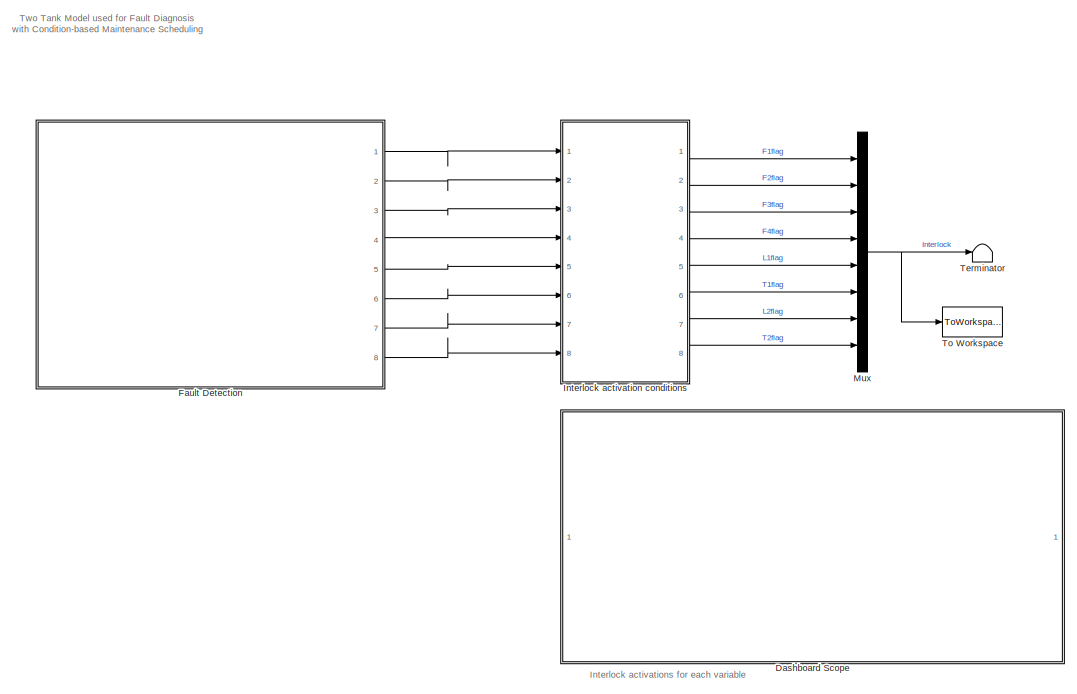
[diagram: root canvas - part 1/2, right side, full height]
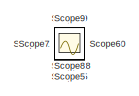
[diagram: root canvas - part 2/2, middle left region]
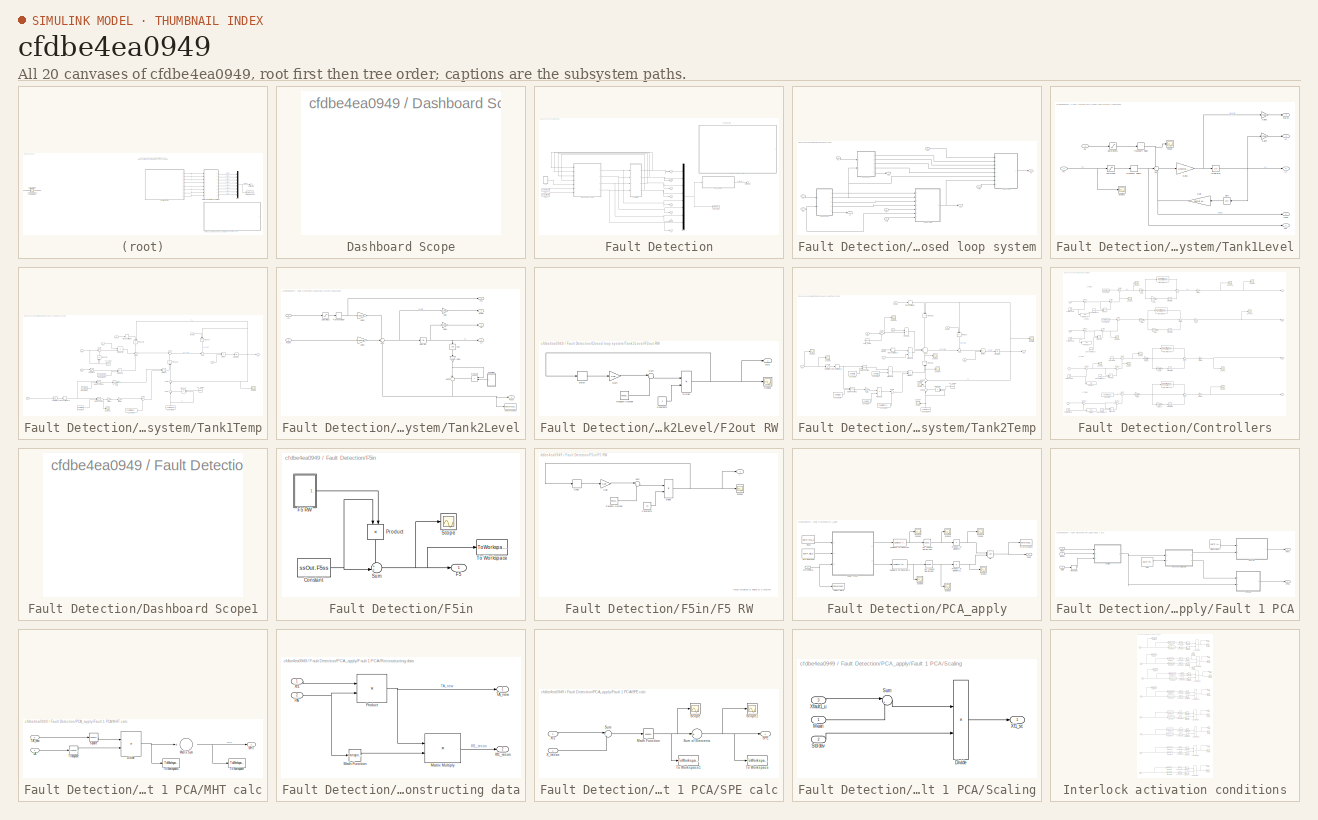
[diagram: thumbnail index - all 20 canvases of the model, root first then tree order]
MODEL slx_cfdbe4ea0949
KIND model
CONFIG AbsTol = auto
CONFIG EnableMultiTasking = off
CONFIG FixedStep = auto
CONFIG MaxStep = auto
CONFIG MinStep = auto
CONFIG RelTol = 1e-3
CONFIG SampleTimeConstraint = Unconstrained
CONFIG Solver = FixedStepAuto
CONFIG SolverName = FixedStepAuto
CONFIG StartTime = 0.0
CONFIG StopTime = 120960
BLOCK [SubSystem] Dashboard Scope
  DialogController = hmiCreateDDGDialog
  IsWebBlock = on
  MaskHideContents = on
  Ports = []
  RequestExecContextInheritance = off
  Variant = off
BLOCK [SubSystem] Fault Detection
  Ports = [0, 8]
  RequestExecContextInheritance = off
  Variant = off
BLOCK [SubSystem] Fault Detection/Closed loop system
  Ports = [7, 4]
  RequestExecContextInheritance = off
  Variant = off
BLOCK [Inport] Fault Detection/Closed loop system/F1
  IconDisplay = Port number
BLOCK [Inport] Fault Detection/Closed loop system/F2
  IconDisplay = Port number
  Port = 2
BLOCK [Inport] Fault Detection/Closed loop system/F3
  IconDisplay = Port number
  Port = 3
BLOCK [Inport] Fault Detection/Closed loop system/F4
  IconDisplay = Port number
  Port = 4
BLOCK [Inport] Fault Detection/Closed loop system/F5
  IconDisplay = Port number
  Port = 5
BLOCK [Outport] Fault Detection/Closed loop system/L1
  IconDisplay = Port number
BLOCK [Outport] Fault Detection/Closed loop system/L2
  IconDisplay = Port number
  Port = 3
BLOCK [Outport] Fault Detection/Closed loop system/T1
  IconDisplay = Port number
  Port = 2
BLOCK [Inport] Fault Detection/Closed loop system/T1in
  IconDisplay = Port number
  Port = 6
BLOCK [Outport] Fault Detection/Closed loop system/T2
  IconDisplay = Port number
  Port = 4
BLOCK [Inport] Fault Detection/Closed loop system/T2in
  IconDisplay = Port number
  Port = 7
BLOCK [SubSystem] Fault Detection/Closed loop system/Tank1Level
  Ports = [2, 5]
  RequestExecContextInheritance = off
  Variant = off
BLOCK [Inport] Fault Detection/Closed loop system/Tank1Level/F1
  IconDisplay = Port number
BLOCK [Outport] Fault Detection/Closed loop system/Tank1Level/F11
  IconDisplay = Port number
BLOCK [Outport] Fault Detection/Closed loop system/Tank1Level/F1out
  IconDisplay = Port number
  Port = 2
BLOCK [Inport] Fault Detection/Closed loop system/Tank1Level/F5
  IconDisplay = Port number
  Port = 2
BLOCK [Gain] Fault Detection/Closed loop system/Tank1Level/Gain
  Gain = ssOut.kL
  OutDataTypeStr = Inherit: Inherit via internal rule
  ParamDataTypeStr = Inherit: Inherit via internal rule
  SaturateOnIntegerOverflow = off
BLOCK [Gain] Fault Detection/Closed loop system/Tank1Level/Gain1
  Gain = 1/ssOut.A1
  OutDataTypeStr = Inherit: Inherit via internal rule
  ParamDataTypeStr = Inherit: Inherit via internal rule
  SaturateOnIntegerOverflow = off
BLOCK [Gain] Fault Detection/Closed loop system/Tank1Level/Gain2
  Gain = ssOut.A1
  OutDataTypeStr = Inherit: Inherit via internal rule
  ParamDataTypeStr = Inherit: Inherit via internal rule
  SaturateOnIntegerOverflow = off
BLOCK [Gain] Fault Detection/Closed loop system/Tank1Level/Gain3
  Gain = ssOut.A1
  OutDataTypeStr = Inherit: Inherit via internal rule
  ParamDataTypeStr = Inherit: Inherit via internal rule
  SaturateOnIntegerOverflow = off
BLOCK [Integrator] Fault Detection/Closed loop system/Tank1Level/Integrator
  InitialCondition = ssOut.L1ss
  Ports = [1, 1]
BLOCK [Outport] Fault Detection/Closed loop system/Tank1Level/L1
  IconDisplay = Port number
  Port = 5
BLOCK [Saturate] Fault Detection/Closed loop system/Tank1Level/Saturation
  InputPortMap = u0
  LowerLimit = ssOut.F1min
  Ports = [1, 1]
  UpperLimit = ssOut.F1max
BLOCK [Saturate] Fault Detection/Closed loop system/Tank1Level/Saturation1
  InputPortMap = u0
  LowerLimit = 0
  Ports = [1, 1]
  UpperLimit = 0.2
BLOCK [Scope] Fault Detection/Closed loop system/Tank1Level/Scope
  NumInputPorts = 1
  Ports = [1]
  ScopeSpecificationString = Simulink.scopes.TimeScopeBlockCfg('CurrentConfiguration', extmgr.ConfigurationSet(extmgr.Configuration('Core','General UI',true),extmgr.Configuration('Core','Source UI',true),extmgr.Configuration('Sources','WiredSimulink',true,'DataLoggingVariableName','ScopeData2'),extmgr.Configuration('Visuals','Time Domain',true,'SerializedDisplays',{struct('MinYLimReal','0.09644','MaxYLimReal','0.10385','YLabe...<+1391ch>
BLOCK [Scope] Fault Detection/Closed loop system/Tank1Level/Scope1
  NumInputPorts = 1
  Ports = [1]
  ScopeSpecificationString = Simulink.scopes.TimeScopeBlockCfg('CurrentConfiguration', extmgr.ConfigurationSet(extmgr.Configuration('Core','General UI',true),extmgr.Configuration('Core','Source UI',true),extmgr.Configuration('Sources','WiredSimulink',true,'DataLoggingVariableName','ScopeData1'),extmgr.Configuration('Visuals','Time Domain',true,'SerializedDisplays',{struct('MinYLimReal','0.12786','MaxYLimReal','0.22968','YLabe...<+1408ch>
BLOCK [Sqrt] Fault Detection/Closed loop system/Tank1Level/Sqrt
BLOCK [Sum] Fault Detection/Closed loop system/Tank1Level/Sum
  IconShape = round
  InputSameDT = off
  Inputs = ++-
  OutDataTypeStr = Inherit: Inherit via internal rule
  Ports = [3, 1]
  SaturateOnIntegerOverflow = off
BLOCK [TransportDelay] Fault Detection/Closed loop system/Tank1Level/Transport Delay
  DelayTime = 1.2
  Ports = [1, 1]
BLOCK [TransportDelay] Fault Detection/Closed loop system/Tank1Level/Transport Delay1
  DelayTime = 1.2
  Ports = [1, 1]
BLOCK [Outport] Fault Detection/Closed loop system/Tank1Level/V1
  IconDisplay = Port number
  Port = 3
BLOCK [Outport] Fault Detection/Closed loop system/Tank1Level/dV1//dt
  IconDisplay = Port number
  Port = 4
BLOCK [SubSystem] Fault Detection/Closed loop system/Tank1Temp
  Ports = [7, 1]
  RequestExecContextInheritance = off
  Variant = off
BLOCK [Constant] Fault Detection/Closed loop system/Tank1Temp/Constant
  Value = ssOut.b-1
BLOCK [Constant] Fault Detection/Closed loop system/Tank1Temp/Constant1
  Value = ssOut.b
BLOCK [Constant] Fault Detection/Closed loop system/Tank1Temp/Constant2
  Value = ssOut.rho*ssOut.cp
BLOCK [Constant] Fault Detection/Closed loop system/Tank1Temp/Constant3
  Value = ssOut.T3ss
BLOCK [Constant] Fault Detection/Closed loop system/Tank1Temp/Constant4
  Value = ssOut.T5in
BLOCK [Product] Fault Detection/Closed loop system/Tank1Temp/Divide
  InputSameDT = off
  Inputs = */
  OutDataTypeStr = Inherit: Inherit via internal rule
  Ports = [2, 1]
  RndMeth = Floor
  SaturateOnIntegerOverflow = off
BLOCK [Product] Fault Detection/Closed loop system/Tank1Temp/Divide1
  InputSameDT = off
  Inputs = */
  OutDataTypeStr = Inherit: Inherit via internal rule
  Ports = [2, 1]
  RndMeth = Floor
  SaturateOnIntegerOverflow = off
BLOCK [Inport] Fault Detection/Closed loop system/Tank1Temp/F11
  IconDisplay = Port number
BLOCK [Inport] Fault Detection/Closed loop system/Tank1Temp/F1out
  IconDisplay = Port number
  Port = 2
BLOCK [Inport] Fault Detection/Closed loop system/Tank1Temp/F3
  IconDisplay = Port number
  Port = 5
BLOCK [Inport] Fault Detection/Closed loop system/Tank1Temp/F5
  IconDisplay = Port number
  Port = 6
BLOCK [Gain] Fault Detection/Closed loop system/Tank1Temp/Gain
  Gain = ssOut.a
  OutDataTypeStr = Inherit: Inherit via internal rule
  ParamDataTypeStr = Inherit: Inherit via internal rule
  SaturateOnIntegerOverflow = off
BLOCK [Gain] Fault Detection/Closed loop system/Tank1Temp/Gain1
  Gain = ssOut.a
  OutDataTypeStr = Inherit: Inherit via internal rule
  ParamDataTypeStr = Inherit: Inherit via internal rule
  SaturateOnIntegerOverflow = off
BLOCK [Gain] Fault Detection/Closed loop system/Tank1Temp/Gain2
  Gain = 0.5
  OutDataTypeStr = Inherit: Inherit via internal rule
  ParamDataTypeStr = Inherit: Inherit via internal rule
  SaturateOnIntegerOverflow = off
BLOCK [Integrator] Fault Detection/Closed loop system/Tank1Temp/Integrator
  InitialCondition = ssOut.T1ss
  Ports = [1, 1]
BLOCK [Math] Fault Detection/Closed loop system/Tank1Temp/Math Function
  Operator = pow
  Ports = [2, 1]
BLOCK [Math] Fault Detection/Closed loop system/Tank1Temp/Math Function1
  Operator = pow
  Ports = [2, 1]
BLOCK [Product] Fault Detection/Closed loop system/Tank1Temp/Product
  InputSameDT = off
  OutDataTypeStr = Inherit: Inherit via internal rule
  Ports = [2, 1]
  RndMeth = Floor
  SaturateOnIntegerOverflow = off
BLOCK [Product] Fault Detection/Closed loop system/Tank1Temp/Product1
  InputSameDT = off
  OutDataTypeStr = Inherit: Inherit via internal rule
  Ports = [2, 1]
  RndMeth = Floor
  SaturateOnIntegerOverflow = off
BLOCK [Product] Fault Detection/Closed loop system/Tank1Temp/Product2
  InputSameDT = off
  OutDataTypeStr = Inherit: Inherit via internal rule
  Ports = [2, 1]
  RndMeth = Floor
  SaturateOnIntegerOverflow = off
BLOCK [Product] Fault Detection/Closed loop system/Tank1Temp/Product3
  InputSameDT = off
  OutDataTypeStr = Inherit: Inherit via internal rule
  Ports = [2, 1]
  RndMeth = Floor
  SaturateOnIntegerOverflow = off
BLOCK [Product] Fault Detection/Closed loop system/Tank1Temp/Product4
  InputSameDT = off
  OutDataTypeStr = Inherit: Inherit via internal rule
  Ports = [2, 1]
  RndMeth = Floor
  SaturateOnIntegerOverflow = off
BLOCK [Product] Fault Detection/Closed loop system/Tank1Temp/Product5
  InputSameDT = off
  OutDataTypeStr = Inherit: Inherit via internal rule
  Ports = [2, 1]
  RndMeth = Floor
  SaturateOnIntegerOverflow = off
BLOCK [Product] Fault Detection/Closed loop system/Tank1Temp/Product7
  InputSameDT = off
  OutDataTypeStr = Inherit: Inherit via internal rule
  Ports = [2, 1]
  RndMeth = Floor
  SaturateOnIntegerOverflow = off
BLOCK [Saturate] Fault Detection/Closed loop system/Tank1Temp/Saturation1
  InputPortMap = u0
  LowerLimit = 0
  Ports = [1, 1]
  UpperLimit = 0.2
BLOCK [Saturate] Fault Detection/Closed loop system/Tank1Temp/Saturation2
  InputPortMap = u0
  LowerLimit = ssOut.F3min
  Ports = [1, 1]
  UpperLimit = ssOut.F3max
BLOCK [Scope] Fault Detection/Closed loop system/Tank1Temp/Scope
  NumInputPorts = 1
  Ports = [1]
  ScopeSpecificationString = Simulink.scopes.TimeScopeBlockCfg('CurrentConfiguration', extmgr.ConfigurationSet(extmgr.Configuration('Core','General UI',true),extmgr.Configuration('Core','Source UI',true),extmgr.Configuration('Sources','WiredSimulink',true,'DataLoggingVariableName','ScopeData3'),extmgr.Configuration('Visuals','Time Domain',true,'SerializedDisplays',{struct('MinYLimReal','57.5767','MaxYLimReal','95.70844','YLab...<+1363ch>
BLOCK [Scope] Fault Detection/Closed loop system/Tank1Temp/Scope1
  NumInputPorts = 1
  Ports = [1]
  ScopeSpecificationString = Simulink.scopes.TimeScopeBlockCfg('CurrentConfiguration', extmgr.ConfigurationSet(extmgr.Configuration('Core','General UI',true),extmgr.Configuration('Core','Source UI',true),extmgr.Configuration('Sources','WiredSimulink',true,'DataLoggingVariableName','ScopeData1'),extmgr.Configuration('Visuals','Time Domain',true,'SerializedDisplays',{struct('MinYLimReal','1.43354','MaxYLimReal','2.59704','YLabe...<+1399ch>
BLOCK [Sum] Fault Detection/Closed loop system/Tank1Temp/Sum
  IconShape = round
  InputSameDT = off
  Inputs = -+|
  OutDataTypeStr = Inherit: Inherit via internal rule
  Ports = [2, 1]
  SaturateOnIntegerOverflow = off
BLOCK [Sum] Fault Detection/Closed loop system/Tank1Temp/Sum1
  IconShape = round
  InputSameDT = off
  Inputs = |+-
  OutDataTypeStr = Inherit: Inherit via internal rule
  Ports = [2, 1]
  SaturateOnIntegerOverflow = off
BLOCK [Sum] Fault Detection/Closed loop system/Tank1Temp/Sum2
  IconShape = round
  InputSameDT = off
  Inputs = |++
  OutDataTypeStr = Inherit: Inherit via internal rule
  Ports = [2, 1]
  SaturateOnIntegerOverflow = off
BLOCK [Sum] Fault Detection/Closed loop system/Tank1Temp/Sum3
  IconShape = round
  InputSameDT = off
  Inputs = |-+
  OutDataTypeStr = Inherit: Inherit via internal rule
  Ports = [2, 1]
  SaturateOnIntegerOverflow = off
BLOCK [Sum] Fault Detection/Closed loop system/Tank1Temp/Sum4
  IconShape = round
  InputSameDT = off
  Inputs = -++
  OutDataTypeStr = Inherit: Inherit via internal rule
  Ports = [3, 1]
  SaturateOnIntegerOverflow = off
BLOCK [Sum] Fault Detection/Closed loop system/Tank1Temp/Sum5
  IconShape = round
  InputSameDT = off
  Inputs = |++
  OutDataTypeStr = Inherit: Inherit via internal rule
  Ports = [2, 1]
  SaturateOnIntegerOverflow = off
BLOCK [Sum] Fault Detection/Closed loop system/Tank1Temp/Sum7
  IconShape = round
  InputSameDT = off
  Inputs = |++
  OutDataTypeStr = Inherit: Inherit via internal rule
  Ports = [2, 1]
  SaturateOnIntegerOverflow = off
BLOCK [Outport] Fault Detection/Closed loop system/Tank1Temp/T1
  IconDisplay = Port number
BLOCK [RandomNumber] Fault Detection/Closed loop system/Tank1Temp/T1_noise
  SampleTime = 1
  Seed = 20
  Variance = ssOut.noiseT1in
BLOCK [Inport] Fault Detection/Closed loop system/Tank1Temp/T1in
  IconDisplay = Port number
  Port = 7
BLOCK [RandomNumber] Fault Detection/Closed loop system/Tank1Temp/T3_noise
  SampleTime = 1
  Seed = 22
  Variance = ssOut.noiseT3
BLOCK [TransportDelay] Fault Detection/Closed loop system/Tank1Temp/Transport Delay
  DelayTime = 0.8
  Ports = [1, 1]
BLOCK [TransportDelay] Fault Detection/Closed loop system/Tank1Temp/Transport Delay1
  DelayTime = 1.2
  Ports = [1, 1]
BLOCK [Inport] Fault Detection/Closed loop system/Tank1Temp/V1
  IconDisplay = Port number
  Port = 3
BLOCK [Inport] Fault Detection/Closed loop system/Tank1Temp/dV1//dt
  IconDisplay = Port number
  Port = 4
BLOCK [SubSystem] Fault Detection/Closed loop system/Tank2Level
  Ports = [2, 5]
  RequestExecContextInheritance = off
  Variant = off
BLOCK [Inport] Fault Detection/Closed loop system/Tank2Level/F1out
  IconDisplay = Port number
  Port = 2
BLOCK [Inport] Fault Detection/Closed loop system/Tank2Level/F2
  IconDisplay = Port number
BLOCK [Outport] Fault Detection/Closed loop system/Tank2Level/F21
  IconDisplay = Port number
  Port = 4
BLOCK [Outport] Fault Detection/Closed loop system/Tank2Level/F2out
  IconDisplay = Port number
BLOCK [SubSystem] Fault Detection/Closed loop system/Tank2Level/F2out RW
  Ports = [0, 1]
  RequestExecContextInheritance = off
  Variant = off
BLOCK [Constant] Fault Detection/Closed loop system/Tank2Level/F2out RW/Constant2
  Value = 3
BLOCK [Delay] Fault Detection/Closed loop system/Tank2Level/F2out RW/Delay
  DelayLength = 1
  InputPortMap = u0
  Ports = [1, 1]
BLOCK [Product] Fault Detection/Closed loop system/Tank2Level/F2out RW/Divide
  InputSameDT = off
  Inputs = */
  OutDataTypeStr = Inherit: Inherit via internal rule
  Ports = [2, 1]
  RndMeth = Floor
  SaturateOnIntegerOverflow = off
BLOCK [Gain] Fault Detection/Closed loop system/Tank2Level/F2out RW/Gain
  Gain = 0.08
  OutDataTypeStr = Inherit: Inherit via internal rule
  ParamDataTypeStr = Inherit: Inherit via internal rule
  SaturateOnIntegerOverflow = off
BLOCK [Outport] Fault Detection/Closed loop system/Tank2Level/F2out RW/Out1
  IconDisplay = Port number
BLOCK [RandomNumber] Fault Detection/Closed loop system/Tank2Level/F2out RW/Random Number
  SampleTime = 1
  Seed = 80
  Variance = 0.019
BLOCK [Scope] Fault Detection/Closed loop system/Tank2Level/F2out RW/Scope1
  NumInputPorts = 1
  Ports = [1]
  ScopeSpecificationString = Simulink.scopes.TimeScopeBlockCfg('CurrentConfiguration', extmgr.ConfigurationSet(extmgr.Configuration('Core','General UI',true),extmgr.Configuration('Core','Source UI',true),extmgr.Configuration('Sources','WiredSimulink',true,'DataLoggingVariableName','ScopeData1'),extmgr.Configuration('Visuals','Time Domain',true,'SerializedDisplays',{struct('MinYLimReal','-0.16515','MaxYLimReal','0.20866','YLab...<+1365ch>
BLOCK [Sum] Fault Detection/Closed loop system/Tank2Level/F2out RW/Sum
  IconShape = round
  InputSameDT = off
  Inputs = |++
  OutDataTypeStr = Inherit: Inherit via internal rule
  Ports = [2, 1]
  SaturateOnIntegerOverflow = off
BLOCK [Gain] Fault Detection/Closed loop system/Tank2Level/Gain
  Gain = ssOut.A2
  OutDataTypeStr = Inherit: Inherit via internal rule
  ParamDataTypeStr = Inherit: Inherit via internal rule
  SaturateOnIntegerOverflow = off
BLOCK [Gain] Fault Detection/Closed loop system/Tank2Level/Gain1
  Gain = ssOut.kL
  OutDataTypeStr = Inherit: Inherit via internal rule
  ParamDataTypeStr = Inherit: Inherit via internal rule
  SaturateOnIntegerOverflow = off
BLOCK [Gain] Fault Detection/Closed loop system/Tank2Level/Gain2
  Gain = 1/ssOut.A2
  OutDataTypeStr = Inherit: Inherit via internal rule
  ParamDataTypeStr = Inherit: Inherit via internal rule
  SaturateOnIntegerOverflow = off
BLOCK [Gain] Fault Detection/Closed loop system/Tank2Level/Gain3
  Gain = 1/ssOut.A2
  OutDataTypeStr = Inherit: Inherit via internal rule
  ParamDataTypeStr = Inherit: Inherit via internal rule
  SaturateOnIntegerOverflow = off
BLOCK [Gain] Fault Detection/Closed loop system/Tank2Level/Gain4
  Gain = ssOut.A2
  OutDataTypeStr = Inherit: Inherit via internal rule
  ParamDataTypeStr = Inherit: Inherit via internal rule
  SaturateOnIntegerOverflow = off
BLOCK [Integrator] Fault Detection/Closed loop system/Tank2Level/Integrator
  InitialCondition = ssOut.L2ss
  Ports = [1, 1]
BLOCK [Outport] Fault Detection/Closed loop system/Tank2Level/L2
  IconDisplay = Port number
  Port = 5
BLOCK [Product] Fault Detection/Closed loop system/Tank2Level/Product1
  InputSameDT = off
  OutDataTypeStr = Inherit: Inherit via internal rule
  Ports = [2, 1]
  RndMeth = Floor
  SaturateOnIntegerOverflow = off
BLOCK [Saturate] Fault Detection/Closed loop system/Tank2Level/Saturation2
  InputPortMap = u0
  LowerLimit = 0
  Ports = [1, 1]
  UpperLimit = ssOut.F2max
BLOCK [Sqrt] Fault Detection/Closed loop system/Tank2Level/Sqrt
BLOCK [Sum] Fault Detection/Closed loop system/Tank2Level/Sum
  IconShape = round
  InputSameDT = off
  Inputs = ++-
  OutDataTypeStr = Inherit: Inherit via internal rule
  Ports = [3, 1]
  SaturateOnIntegerOverflow = off
BLOCK [Sum] Fault Detection/Closed loop system/Tank2Level/Sum3
  IconShape = round
  InputSameDT = off
  Inputs = |++
  OutDataTypeStr = Inherit: Inherit via internal rule
  Ports = [2, 1]
  SaturateOnIntegerOverflow = off
BLOCK [ToWorkspace] Fault Detection/Closed loop system/Tank2Level/To Workspace
  FixptAsFi = on
  MaxDataPoints = inf
  Ports = [1]
  SampleTime = 1
  Save2DSignal = 3-D array (concatenate along third dimension)
  SaveFormat = Timeseries
  VariableName = F2out
BLOCK [TransportDelay] Fault Detection/Closed loop system/Tank2Level/Transport Delay
  DelayTime = 1.2
  Ports = [1, 1]
BLOCK [Outport] Fault Detection/Closed loop system/Tank2Level/V2
  IconDisplay = Port number
  Port = 2
BLOCK [Outport] Fault Detection/Closed loop system/Tank2Level/dV2//dt
  IconDisplay = Port number
  Port = 3
BLOCK [SubSystem] Fault Detection/Closed loop system/Tank2Temp
  Ports = [8, 1]
  RequestExecContextInheritance = off
  Variant = off
BLOCK [Constant] Fault Detection/Closed loop system/Tank2Temp/Constant3
  Value = ssOut.T4ss
BLOCK [Constant] Fault Detection/Closed loop system/Tank2Temp/Constant4
  Value = ssOut.a
BLOCK [Constant] Fault Detection/Closed loop system/Tank2Temp/Constant5
  Value = ssOut.b
BLOCK [Constant] Fault Detection/Closed loop system/Tank2Temp/Constant6
  Value = ssOut.b-1
BLOCK [Constant] Fault Detection/Closed loop system/Tank2Temp/Constant7
  Value = ssOut.a
BLOCK [Constant] Fault Detection/Closed loop system/Tank2Temp/Constant8
  Value = ssOut.rho*ssOut.cp
BLOCK [Product] Fault Detection/Closed loop system/Tank2Temp/Divide
  InputSameDT = off
  Inputs = */
  OutDataTypeStr = Inherit: Inherit via internal rule
  Ports = [2, 1]
  RndMeth = Floor
  SaturateOnIntegerOverflow = off
BLOCK [Product] Fault Detection/Closed loop system/Tank2Temp/Divide1
  InputSameDT = off
  Inputs = */
  OutDataTypeStr = Inherit: Inherit via internal rule
  Ports = [2, 1]
  RndMeth = Floor
  SaturateOnIntegerOverflow = off
BLOCK [Inport] Fault Detection/Closed loop system/Tank2Temp/F1out
  IconDisplay = Port number
  Port = 6
BLOCK [Inport] Fault Detection/Closed loop system/Tank2Temp/F21
  IconDisplay = Port number
  Port = 5
BLOCK [Inport] Fault Detection/Closed loop system/Tank2Temp/F2out
  IconDisplay = Port number
  Port = 2
BLOCK [Inport] Fault Detection/Closed loop system/Tank2Temp/F4
  IconDisplay = Port number
BLOCK [Gain] Fault Detection/Closed loop system/Tank2Temp/Gain
  Gain = 0.5
  OutDataTypeStr = Inherit: Inherit via internal rule
  ParamDataTypeStr = Inherit: Inherit via internal rule
  SaturateOnIntegerOverflow = off
BLOCK [Integrator] Fault Detection/Closed loop system/Tank2Temp/Integrator1
  InitialCondition = ssOut.T2ss
  Ports = [1, 1]
BLOCK [Math] Fault Detection/Closed loop system/Tank2Temp/Math Function
  Operator = pow
  Ports = [2, 1]
BLOCK [Math] Fault Detection/Closed loop system/Tank2Temp/Math Function1
  Operator = pow
  Ports = [2, 1]
BLOCK [Product] Fault Detection/Closed loop system/Tank2Temp/Product
  InputSameDT = off
  OutDataTypeStr = Inherit: Inherit via internal rule
  Ports = [2, 1]
  RndMeth = Floor
  SaturateOnIntegerOverflow = off
BLOCK [Product] Fault Detection/Closed loop system/Tank2Temp/Product1
  InputSameDT = off
  OutDataTypeStr = Inherit: Inherit via internal rule
  Ports = [2, 1]
  RndMeth = Floor
  SaturateOnIntegerOverflow = off
BLOCK [Product] Fault Detection/Closed loop system/Tank2Temp/Product2
  InputSameDT = off
  OutDataTypeStr = Inherit: Inherit via internal rule
  Ports = [2, 1]
  RndMeth = Floor
  SaturateOnIntegerOverflow = off
BLOCK [Product] Fault Detection/Closed loop system/Tank2Temp/Product3
  InputSameDT = off
  OutDataTypeStr = Inherit: Inherit via internal rule
  Ports = [2, 1]
  RndMeth = Floor
  SaturateOnIntegerOverflow = off
BLOCK [Product] Fault Detection/Closed loop system/Tank2Temp/Product4
  InputSameDT = off
  OutDataTypeStr = Inherit: Inherit via internal rule
  Ports = [2, 1]
  RndMeth = Floor
  SaturateOnIntegerOverflow = off
BLOCK [Product] Fault Detection/Closed loop system/Tank2Temp/Product5
  InputSameDT = off
  OutDataTypeStr = Inherit: Inherit via internal rule
  Ports = [2, 1]
  RndMeth = Floor
  SaturateOnIntegerOverflow = off
BLOCK [Product] Fault Detection/Closed loop system/Tank2Temp/Product6
  InputSameDT = off
  OutDataTypeStr = Inherit: Inherit via internal rule
  Ports = [2, 1]
  RndMeth = Floor
  SaturateOnIntegerOverflow = off
BLOCK [Product] Fault Detection/Closed loop system/Tank2Temp/Product8
  InputSameDT = off
  OutDataTypeStr = Inherit: Inherit via internal rule
  Ports = [2, 1]
  RndMeth = Floor
  SaturateOnIntegerOverflow = off
BLOCK [Saturate] Fault Detection/Closed loop system/Tank2Temp/Saturation3
  InputPortMap = u0
  LowerLimit = 0
  Ports = [1, 1]
  UpperLimit = ssOut.F4max
BLOCK [Scope] Fault Detection/Closed loop system/Tank2Temp/Scope
  NumInputPorts = 1
  Ports = [1]
  ScopeSpecificationString = Simulink.scopes.TimeScopeBlockCfg('CurrentConfiguration', extmgr.ConfigurationSet(extmgr.Configuration('Core','General UI',true),extmgr.Configuration('Core','Source UI',true),extmgr.Configuration('Sources','WiredSimulink',true,'DataLoggingVariableName','ScopeData4'),extmgr.Configuration('Visuals','Time Domain',true,'SerializedDisplays',{struct('MinYLimReal','60.20925','MaxYLimReal','105.58323','YL...<+1371ch>
BLOCK [Scope] Fault Detection/Closed loop system/Tank2Temp/Scope1
  NumInputPorts = 1
  Ports = [1]
  ScopeSpecificationString = Simulink.scopes.TimeScopeBlockCfg('CurrentConfiguration', extmgr.ConfigurationSet(extmgr.Configuration('Core','General UI',true),extmgr.Configuration('Core','Source UI',true),extmgr.Configuration('Sources','WiredSimulink',true,'DataLoggingVariableName','ScopeData4'),extmgr.Configuration('Visuals','Time Domain',true,'SerializedDisplays',{struct('MinYLimReal','9.25138','MaxYLimReal','30.86405','YLab...<+1384ch>
BLOCK [Scope] Fault Detection/Closed loop system/Tank2Temp/Scope2
  NumInputPorts = 1
  Ports = [1]
  ScopeSpecificationString = Simulink.scopes.TimeScopeBlockCfg('CurrentConfiguration', extmgr.ConfigurationSet(extmgr.Configuration('Core','General UI',true),extmgr.Configuration('Core','Source UI',true),extmgr.Configuration('Sources','WiredSimulink',true,'DataLoggingVariableName','ScopeData5'),extmgr.Configuration('Visuals','Time Domain',true,'SerializedDisplays',{struct('MinYLimReal','-0.08747','MaxYLimReal','0.28167','YLab...<+1382ch>
BLOCK [Scope] Fault Detection/Closed loop system/Tank2Temp/Scope3
  NumInputPorts = 1
  Ports = [1]
  ScopeSpecificationString = Simulink.scopes.TimeScopeBlockCfg('CurrentConfiguration', extmgr.ConfigurationSet(extmgr.Configuration('Core','General UI',true),extmgr.Configuration('Core','Source UI',true),extmgr.Configuration('Sources','WiredSimulink',true,'DataLoggingVariableName','ScopeData6','DataLoggingSaveFormat','Array','DataLoggingDecimation','1','DataLoggingDecimateData',true),extmgr.Configuration('Visuals','Time Domai...<+1468ch>
BLOCK [Scope] Fault Detection/Closed loop system/Tank2Temp/Scope4
  NumInputPorts = 1
  Ports = [1]
  ScopeSpecificationString = Simulink.scopes.TimeScopeBlockCfg('CurrentConfiguration', extmgr.ConfigurationSet(extmgr.Configuration('Core','General UI',true),extmgr.Configuration('Core','Source UI',true),extmgr.Configuration('Sources','WiredSimulink',true,'DataLoggingVariableName','ScopeData3','DataLoggingSaveFormat','Array','DataLoggingDecimation','1','DataLoggingDecimateData',true),extmgr.Configuration('Visuals','Time Domai...<+1468ch>
BLOCK [Scope] Fault Detection/Closed loop system/Tank2Temp/Scope5
  NumInputPorts = 1
  Ports = [1]
  ScopeSpecificationString = Simulink.scopes.TimeScopeBlockCfg('CurrentConfiguration', extmgr.ConfigurationSet(extmgr.Configuration('Core','General UI',true),extmgr.Configuration('Core','Source UI',true),extmgr.Configuration('Sources','WiredSimulink',true,'DataLoggingVariableName','ScopeData4','DataLoggingSaveFormat','Array','DataLoggingDecimation','1','DataLoggingDecimateData',true),extmgr.Configuration('Visuals','Time Domai...<+1464ch>
BLOCK [Scope] Fault Detection/Closed loop system/Tank2Temp/Scope6
  NumInputPorts = 1
  Ports = [1]
  ScopeSpecificationString = Simulink.scopes.TimeScopeBlockCfg('CurrentConfiguration', extmgr.ConfigurationSet(extmgr.Configuration('Core','General UI',true),extmgr.Configuration('Core','Source UI',true),extmgr.Configuration('Sources','WiredSimulink',true,'DataLoggingVariableName','ScopeData5'),extmgr.Configuration('Visuals','Time Domain',true,'SerializedDisplays',{struct('MinYLimReal','-0.08953','MaxYLimReal','0.35834','YLab...<+1380ch>
BLOCK [Scope] Fault Detection/Closed loop system/Tank2Temp/Scope7
  NumInputPorts = 1
  Ports = [1]
  ScopeSpecificationString = Simulink.scopes.TimeScopeBlockCfg('CurrentConfiguration', extmgr.ConfigurationSet(extmgr.Configuration('Core','General UI',true),extmgr.Configuration('Core','Source UI',true),extmgr.Configuration('Sources','WiredSimulink',true,'DataLoggingVariableName','ScopeData6','DataLoggingSaveFormat','Array','DataLoggingDecimation','1','DataLoggingDecimateData',true),extmgr.Configuration('Visuals','Time Domai...<+1469ch>
BLOCK [Sum] Fault Detection/Closed loop system/Tank2Temp/Sum
  IconShape = round
  InputSameDT = off
  Inputs = -+|
  OutDataTypeStr = Inherit: Inherit via internal rule
  Ports = [2, 1]
  SaturateOnIntegerOverflow = off
BLOCK [Sum] Fault Detection/Closed loop system/Tank2Temp/Sum1
  IconShape = round
  InputSameDT = off
  Inputs = |-+
  OutDataTypeStr = Inherit: Inherit via internal rule
  Ports = [2, 1]
  SaturateOnIntegerOverflow = off
BLOCK [Sum] Fault Detection/Closed loop system/Tank2Temp/Sum2
  IconShape = round
  InputSameDT = off
  Inputs = |++
  OutDataTypeStr = Inherit: Inherit via internal rule
  Ports = [2, 1]
  SaturateOnIntegerOverflow = off
BLOCK [Sum] Fault Detection/Closed loop system/Tank2Temp/Sum3
  IconShape = round
  InputSameDT = off
  Inputs = -++-
  OutDataTypeStr = Inherit: Inherit via internal rule
  Ports = [4, 1]
  SaturateOnIntegerOverflow = off
BLOCK [Sum] Fault Detection/Closed loop system/Tank2Temp/Sum4
  IconShape = round
  InputSameDT = off
  Inputs = |++
  OutDataTypeStr = Inherit: Inherit via internal rule
  Ports = [2, 1]
  SaturateOnIntegerOverflow = off
BLOCK [Sum] Fault Detection/Closed loop system/Tank2Temp/Sum5
  IconShape = round
  InputSameDT = off
  Inputs = |++
  OutDataTypeStr = Inherit: Inherit via internal rule
  Ports = [2, 1]
  SaturateOnIntegerOverflow = off
BLOCK [Inport] Fault Detection/Closed loop system/Tank2Temp/T11
  IconDisplay = Port number
  Port = 7
BLOCK [Outport] Fault Detection/Closed loop system/Tank2Temp/T2
  IconDisplay = Port number
BLOCK [Inport] Fault Detection/Closed loop system/Tank2Temp/T2in
  IconDisplay = Port number
  Port = 8
BLOCK [RandomNumber] Fault Detection/Closed loop system/Tank2Temp/T2in_noise
  SampleTime = 1
  Seed = 25
  Variance = ssOut.noiseT2in
BLOCK [RandomNumber] Fault Detection/Closed loop system/Tank2Temp/T4_noise
  SampleTime = 1
  Seed = 84
  Variance = ssOut.noiseT4
BLOCK [TransportDelay] Fault Detection/Closed loop system/Tank2Temp/Transport Delay
  DelayTime = 1.2
  Ports = [1, 1]
BLOCK [TransportDelay] Fault Detection/Closed loop system/Tank2Temp/Transport Delay1
  DelayTime = 1.2
  Ports = [1, 1]
BLOCK [TransportDelay] Fault Detection/Closed loop system/Tank2Temp/Transport Delay2
  DelayTime = 1.2
  Ports = [1, 1]
BLOCK [Inport] Fault Detection/Closed loop system/Tank2Temp/V2
  IconDisplay = Port number
  Port = 3
BLOCK [Inport] Fault Detection/Closed loop system/Tank2Temp/dV2//dt
  IconDisplay = Port number
  Port = 4
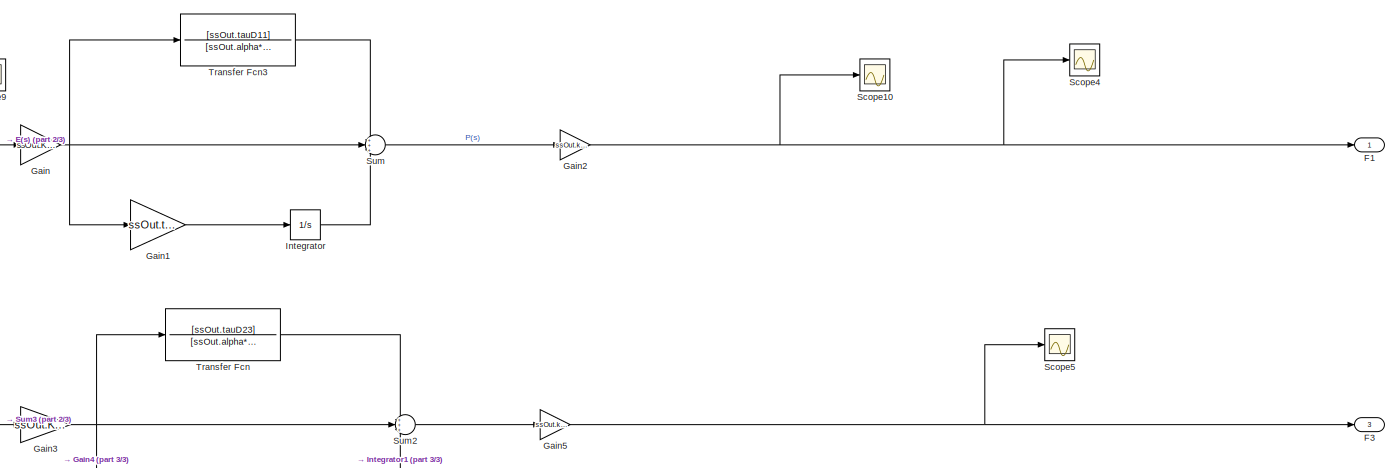
[diagram: Fault Detection/Controllers - part 1/3, top center region]
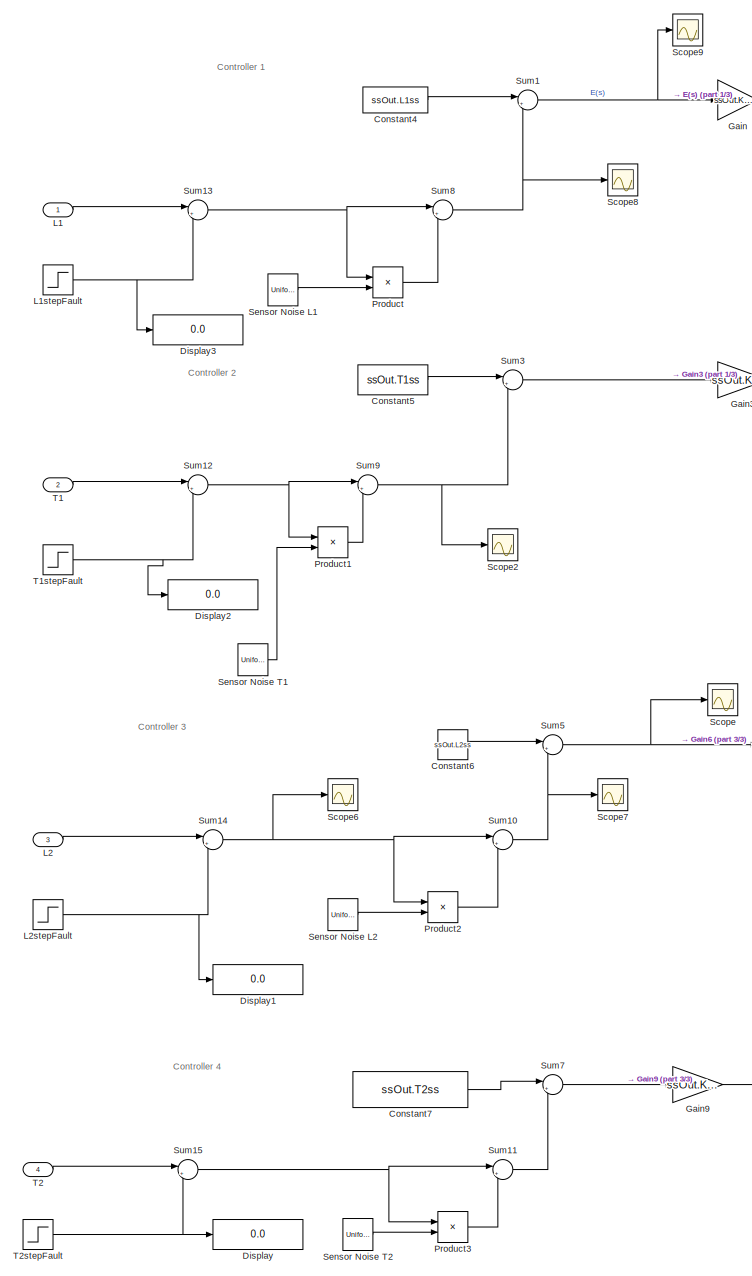
[diagram: Fault Detection/Controllers - part 2/3, left side, full height]
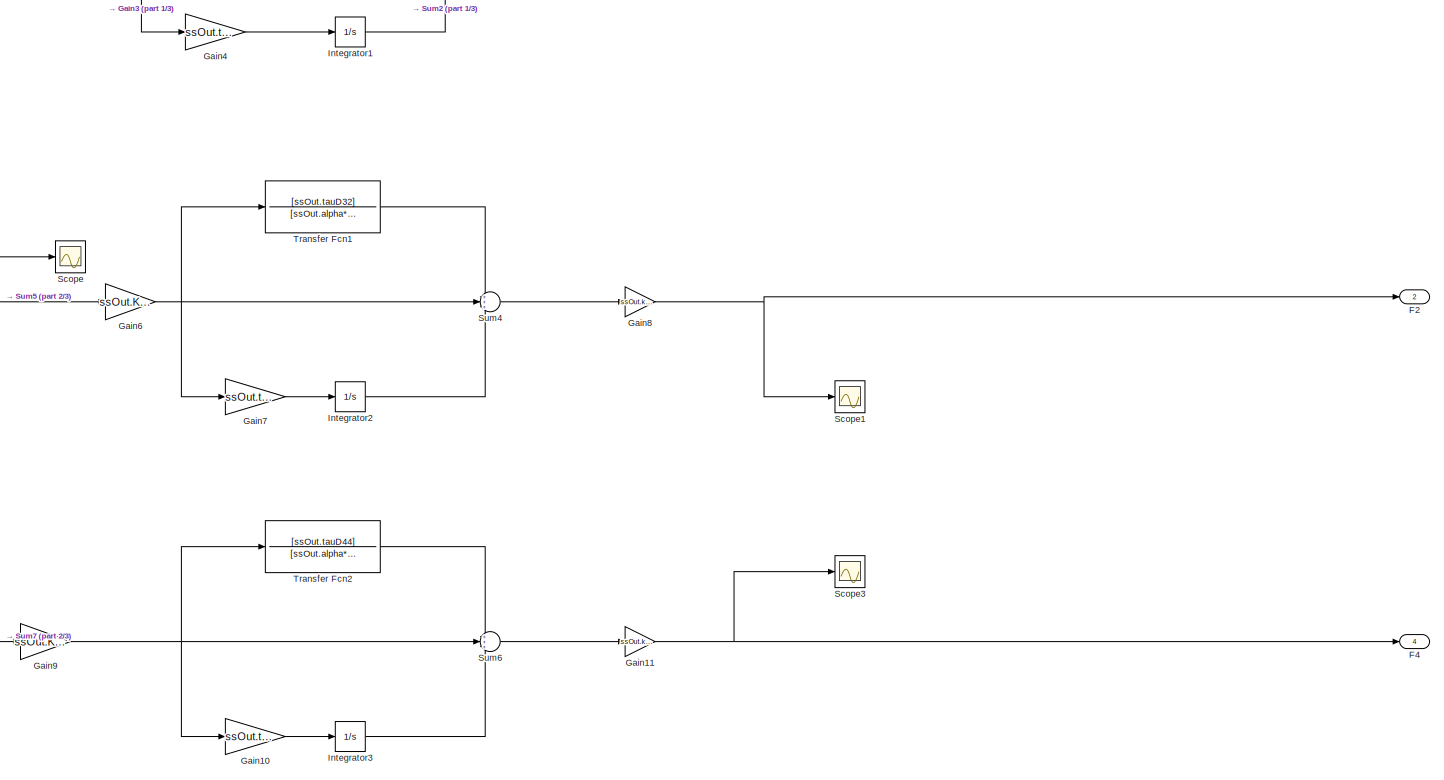
[diagram: Fault Detection/Controllers - part 3/3, central region]
BLOCK [SubSystem] Fault Detection/Controllers
  Ports = [4, 4]
  RequestExecContextInheritance = off
  Variant = off
BLOCK [Constant] Fault Detection/Controllers/Constant4
  Value = ssOut.L1ss
BLOCK [Constant] Fault Detection/Controllers/Constant5
  Value = ssOut.T1ss
BLOCK [Constant] Fault Detection/Controllers/Constant6
  Value = ssOut.L2ss
BLOCK [Constant] Fault Detection/Controllers/Constant7
  Value = ssOut.T2ss
BLOCK [Display] Fault Detection/Controllers/Display
  Decimation = 1
  Ports = [1]
BLOCK [Display] Fault Detection/Controllers/Display1
  Decimation = 1
  Ports = [1]
BLOCK [Display] Fault Detection/Controllers/Display2
  Decimation = 1
  Ports = [1]
BLOCK [Display] Fault Detection/Controllers/Display3
  Decimation = 1
  Ports = [1]
BLOCK [Outport] Fault Detection/Controllers/F1
  IconDisplay = Port number
BLOCK [Outport] Fault Detection/Controllers/F2
  IconDisplay = Port number
  Port = 2
BLOCK [Outport] Fault Detection/Controllers/F3
  IconDisplay = Port number
  Port = 3
BLOCK [Outport] Fault Detection/Controllers/F4
  IconDisplay = Port number
  Port = 4
BLOCK [Gain] Fault Detection/Controllers/Gain
  Gain = ssOut.Kc11
  OutDataTypeStr = Inherit: Inherit via internal rule
  ParamDataTypeStr = Inherit: Inherit via internal rule
  SaturateOnIntegerOverflow = off
BLOCK [Gain] Fault Detection/Controllers/Gain1
  Gain = ssOut.tauI11
  OutDataTypeStr = Inherit: Inherit via internal rule
  ParamDataTypeStr = Inherit: Inherit via internal rule
  SaturateOnIntegerOverflow = off
BLOCK [Gain] Fault Detection/Controllers/Gain10
  Gain = ssOut.tauI44
  OutDataTypeStr = Inherit: Inherit via internal rule
  ParamDataTypeStr = Inherit: Inherit via internal rule
  SaturateOnIntegerOverflow = off
BLOCK [Gain] Fault Detection/Controllers/Gain11
  Gain = ssOut.kv4
  OutDataTypeStr = Inherit: Inherit via internal rule
  ParamDataTypeStr = Inherit: Inherit via internal rule
  SaturateOnIntegerOverflow = off
BLOCK [Gain] Fault Detection/Controllers/Gain2
  Gain = ssOut.kv1
  OutDataTypeStr = Inherit: Inherit via internal rule
  ParamDataTypeStr = Inherit: Inherit via internal rule
  SaturateOnIntegerOverflow = off
BLOCK [Gain] Fault Detection/Controllers/Gain3
  Gain = ssOut.Kc23
  OutDataTypeStr = Inherit: Inherit via internal rule
  ParamDataTypeStr = Inherit: Inherit via internal rule
  SaturateOnIntegerOverflow = off
BLOCK [Gain] Fault Detection/Controllers/Gain4
  Gain = ssOut.tauI23
  OutDataTypeStr = Inherit: Inherit via internal rule
  ParamDataTypeStr = Inherit: Inherit via internal rule
  SaturateOnIntegerOverflow = off
BLOCK [Gain] Fault Detection/Controllers/Gain5
  Gain = ssOut.kv2
  OutDataTypeStr = Inherit: Inherit via internal rule
  ParamDataTypeStr = Inherit: Inherit via internal rule
  SaturateOnIntegerOverflow = off
BLOCK [Gain] Fault Detection/Controllers/Gain6
  Gain = ssOut.Kc32
  OutDataTypeStr = Inherit: Inherit via internal rule
  ParamDataTypeStr = Inherit: Inherit via internal rule
  SaturateOnIntegerOverflow = off
BLOCK [Gain] Fault Detection/Controllers/Gain7
  Gain = ssOut.tauI32
  OutDataTypeStr = Inherit: Inherit via internal rule
  ParamDataTypeStr = Inherit: Inherit via internal rule
  SaturateOnIntegerOverflow = off
BLOCK [Gain] Fault Detection/Controllers/Gain8
  Gain = ssOut.kv3
  OutDataTypeStr = Inherit: Inherit via internal rule
  ParamDataTypeStr = Inherit: Inherit via internal rule
  SaturateOnIntegerOverflow = off
BLOCK [Gain] Fault Detection/Controllers/Gain9
  Gain = ssOut.Kc44
  OutDataTypeStr = Inherit: Inherit via internal rule
  ParamDataTypeStr = Inherit: Inherit via internal rule
  SaturateOnIntegerOverflow = off
BLOCK [Integrator] Fault Detection/Controllers/Integrator
  Ports = [1, 1]
BLOCK [Integrator] Fault Detection/Controllers/Integrator1
  InitialCondition = ssOut.F3ss
  Ports = [1, 1]
BLOCK [Integrator] Fault Detection/Controllers/Integrator2
  InitialCondition = ssOut.F2ss
  Ports = [1, 1]
BLOCK [Integrator] Fault Detection/Controllers/Integrator3
  InitialCondition = ssOut.F4ss
  Ports = [1, 1]
BLOCK [Inport] Fault Detection/Controllers/L1
  IconDisplay = Port number
BLOCK [Step] Fault Detection/Controllers/L1stepFault
  After = sizeStep_Gc11
  SampleTime = 0
  Time = tStep_Gc11
BLOCK [Inport] Fault Detection/Controllers/L2
  IconDisplay = Port number
  Port = 3
BLOCK [Step] Fault Detection/Controllers/L2stepFault
  After = sizeStep_Gc32
  SampleTime = 0
  Time = tStep_Gc32
BLOCK [Product] Fault Detection/Controllers/Product
  InputSameDT = off
  OutDataTypeStr = Inherit: Inherit via internal rule
  Ports = [2, 1]
  RndMeth = Floor
  SaturateOnIntegerOverflow = off
BLOCK [Product] Fault Detection/Controllers/Product1
  InputSameDT = off
  OutDataTypeStr = Inherit: Inherit via internal rule
  Ports = [2, 1]
  RndMeth = Floor
  SaturateOnIntegerOverflow = off
BLOCK [Product] Fault Detection/Controllers/Product2
  InputSameDT = off
  OutDataTypeStr = Inherit: Inherit via internal rule
  Ports = [2, 1]
  RndMeth = Floor
  SaturateOnIntegerOverflow = off
BLOCK [Product] Fault Detection/Controllers/Product3
  InputSameDT = off
  OutDataTypeStr = Inherit: Inherit via internal rule
  Ports = [2, 1]
  RndMeth = Floor
  SaturateOnIntegerOverflow = off
BLOCK [Scope] Fault Detection/Controllers/Scope
  NumInputPorts = 1
  Ports = [1]
  ScopeSpecificationString = Simulink.scopes.TimeScopeBlockCfg('CurrentConfiguration', extmgr.ConfigurationSet(extmgr.Configuration('Core','General UI',true),extmgr.Configuration('Core','Source UI',true),extmgr.Configuration('Sources','WiredSimulink',true,'DataLoggingVariableName','ScopeData1'),extmgr.Configuration('Visuals','Time Domain',true,'SerializedDisplays',{struct('MinYLimReal','-0.50087','MaxYLimReal','0.55201','YLab...<+1363ch>
BLOCK [Scope] Fault Detection/Controllers/Scope1
  NumInputPorts = 1
  Ports = [1]
  ScopeSpecificationString = Simulink.scopes.TimeScopeBlockCfg('CurrentConfiguration', extmgr.ConfigurationSet(extmgr.Configuration('Core','General UI',true),extmgr.Configuration('Core','Source UI',true),extmgr.Configuration('Sources','WiredSimulink',true,'DataLoggingVariableName','ScopeData2'),extmgr.Configuration('Visuals','Time Domain',true,'SerializedDisplays',{struct('MinYLimReal','-0.14079','MaxYLimReal','0.45867','YLab...<+1364ch>
BLOCK [Scope] Fault Detection/Controllers/Scope10
  NumInputPorts = 1
  Ports = [1]
  ScopeSpecificationString = Simulink.scopes.TimeScopeBlockCfg('CurrentConfiguration', extmgr.ConfigurationSet(extmgr.Configuration('Core','General UI',true),extmgr.Configuration('Core','Source UI',true),extmgr.Configuration('Sources','WiredSimulink',true,'DataLoggingVariableName','ScopeData5'),extmgr.Configuration('Visuals','Time Domain',true,'SerializedDisplays',{struct('MinYLimReal','0.17966','MaxYLimReal','0.18126','YLabe...<+1410ch>
BLOCK [Scope] Fault Detection/Controllers/Scope2
  NumInputPorts = 1
  Ports = [1]
  ScopeSpecificationString = Simulink.scopes.TimeScopeBlockCfg('CurrentConfiguration', extmgr.ConfigurationSet(extmgr.Configuration('Core','General UI',true),extmgr.Configuration('Core','Source UI',true),extmgr.Configuration('Sources','WiredSimulink',true,'DataLoggingVariableName','ScopeData1'),extmgr.Configuration('Visuals','Time Domain',true,'SerializedDisplays',{struct('MinYLimReal','66.82118','MaxYLimReal','98.99236','YLa...<+1369ch>
BLOCK [Scope] Fault Detection/Controllers/Scope3
  NumInputPorts = 1
  Ports = [1]
  ScopeSpecificationString = Simulink.scopes.TimeScopeBlockCfg('CurrentConfiguration', extmgr.ConfigurationSet(extmgr.Configuration('Core','General UI',true),extmgr.Configuration('Core','Source UI',true),extmgr.Configuration('Sources','WiredSimulink',true,'DataLoggingVariableName','ScopeData5'),extmgr.Configuration('Visuals','Time Domain',true,'SerializedDisplays',{struct('MinYLimReal','-0.0684','MaxYLimReal','0.3065','YLabel...<+1359ch>
BLOCK [Scope] Fault Detection/Controllers/Scope4
  NumInputPorts = 1
  Ports = [1]
  ScopeSpecificationString = Simulink.scopes.TimeScopeBlockCfg('CurrentConfiguration', extmgr.ConfigurationSet(extmgr.Configuration('Core','General UI',true),extmgr.Configuration('Core','Source UI',true),extmgr.Configuration('Sources','WiredSimulink',true,'DataLoggingVariableName','ScopeData11'),extmgr.Configuration('Visuals','Time Domain',true,'SerializedDisplays',{struct('MinYLimReal','-23.34288','MaxYLimReal','2.81717','YL...<+1369ch>
BLOCK [Scope] Fault Detection/Controllers/Scope5
  NumInputPorts = 1
  Ports = [1]
  ScopeSpecificationString = Simulink.scopes.TimeScopeBlockCfg('CurrentConfiguration', extmgr.ConfigurationSet(extmgr.Configuration('Core','General UI',true),extmgr.Configuration('Core','Source UI',true),extmgr.Configuration('Sources','WiredSimulink',true,'DataLoggingVariableName','ScopeData12'),extmgr.Configuration('Visuals','Time Domain',true,'SerializedDisplays',{struct('MinYLimReal','-0.0355','MaxYLimReal','0.31954','YLab...<+1368ch>
BLOCK [Scope] Fault Detection/Controllers/Scope6
  NumInputPorts = 1
  Ports = [1]
  ScopeSpecificationString = Simulink.scopes.TimeScopeBlockCfg('CurrentConfiguration', extmgr.ConfigurationSet(extmgr.Configuration('Core','General UI',true),extmgr.Configuration('Core','Source UI',true),extmgr.Configuration('Sources','WiredSimulink',true,'DataLoggingVariableName','ScopeData2'),extmgr.Configuration('Visuals','Time Domain',true,'SerializedDisplays',{struct('MinYLimReal','1.84675','MaxYLimReal','2.76486','YLabe...<+1362ch>
BLOCK [Scope] Fault Detection/Controllers/Scope7
  NumInputPorts = 1
  Ports = [1]
  ScopeSpecificationString = Simulink.scopes.TimeScopeBlockCfg('CurrentConfiguration', extmgr.ConfigurationSet(extmgr.Configuration('Core','General UI',true),extmgr.Configuration('Core','Source UI',true),extmgr.Configuration('Sources','WiredSimulink',true,'DataLoggingVariableName','ScopeData3'),extmgr.Configuration('Visuals','Time Domain',true,'SerializedDisplays',{struct('MinYLimReal','2.26707','MaxYLimReal','2.55542','YLabe...<+1381ch>
BLOCK [Scope] Fault Detection/Controllers/Scope8
  NumInputPorts = 1
  Ports = [1]
  ScopeSpecificationString = Simulink.scopes.TimeScopeBlockCfg('CurrentConfiguration', extmgr.ConfigurationSet(extmgr.Configuration('Core','General UI',true),extmgr.Configuration('Core','Source UI',true),extmgr.Configuration('Sources','WiredSimulink',true,'DataLoggingVariableName','ScopeData3'),extmgr.Configuration('Visuals','Time Domain',true,'SerializedDisplays',{struct('MinYLimReal','1.92824','MaxYLimReal','2.08706','YLabe...<+1380ch>
BLOCK [Scope] Fault Detection/Controllers/Scope9
  NumInputPorts = 1
  Ports = [1]
  ScopeSpecificationString = Simulink.scopes.TimeScopeBlockCfg('CurrentConfiguration', extmgr.ConfigurationSet(extmgr.Configuration('Core','General UI',true),extmgr.Configuration('Core','Source UI',true),extmgr.Configuration('Sources','WiredSimulink',true,'DataLoggingVariableName','ScopeData4'),extmgr.Configuration('Visuals','Time Domain',true,'SerializedDisplays',{struct('MinYLimReal','-0.02608','MaxYLimReal','0.02318','YLab...<+1411ch>
BLOCK [UniformRandomNumber] Fault Detection/Controllers/Sensor Noise L1
  Maximum = ssOut.noiseL1
  Minimum = 0
  SampleTime = 1
  Seed = 145
BLOCK [UniformRandomNumber] Fault Detection/Controllers/Sensor Noise L2
  Maximum = ssOut.noiseL2
  Minimum = 0
  SampleTime = 1
  Seed = 145
BLOCK [UniformRandomNumber] Fault Detection/Controllers/Sensor Noise T1
  Maximum = ssOut.noiseT1
  Minimum = 0
  SampleTime = 1
  Seed = 67
BLOCK [UniformRandomNumber] Fault Detection/Controllers/Sensor Noise T2
  Maximum = ssOut.noiseT2
  Minimum = 0
  SampleTime = 1
  Seed = 67
BLOCK [Sum] Fault Detection/Controllers/Sum
  IconShape = round
  InputSameDT = off
  Inputs = +++
  OutDataTypeStr = Inherit: Inherit via internal rule
  Ports = [3, 1]
  SaturateOnIntegerOverflow = off
BLOCK [Sum] Fault Detection/Controllers/Sum1
  IconShape = round
  InputSameDT = off
  Inputs = |+-
  OutDataTypeStr = Inherit: Inherit via internal rule
  Ports = [2, 1]
  SaturateOnIntegerOverflow = off
BLOCK [Sum] Fault Detection/Controllers/Sum10
  IconShape = round
  InputSameDT = off
  Inputs = |++
  OutDataTypeStr = Inherit: Inherit via internal rule
  Ports = [2, 1]
  SaturateOnIntegerOverflow = off
BLOCK [Sum] Fault Detection/Controllers/Sum11
  IconShape = round
  InputSameDT = off
  Inputs = |++
  OutDataTypeStr = Inherit: Inherit via internal rule
  Ports = [2, 1]
  SaturateOnIntegerOverflow = off
BLOCK [Sum] Fault Detection/Controllers/Sum12
  IconShape = round
  InputSameDT = off
  Inputs = |++
  OutDataTypeStr = Inherit: Inherit via internal rule
  Ports = [2, 1]
  SaturateOnIntegerOverflow = off
BLOCK [Sum] Fault Detection/Controllers/Sum13
  IconShape = round
  InputSameDT = off
  Inputs = |++
  OutDataTypeStr = Inherit: Inherit via internal rule
  Ports = [2, 1]
  SaturateOnIntegerOverflow = off
BLOCK [Sum] Fault Detection/Controllers/Sum14
  IconShape = round
  InputSameDT = off
  Inputs = |++
  OutDataTypeStr = Inherit: Inherit via internal rule
  Ports = [2, 1]
  SaturateOnIntegerOverflow = off
BLOCK [Sum] Fault Detection/Controllers/Sum15
  IconShape = round
  InputSameDT = off
  Inputs = |++
  OutDataTypeStr = Inherit: Inherit via internal rule
  Ports = [2, 1]
  SaturateOnIntegerOverflow = off
BLOCK [Sum] Fault Detection/Controllers/Sum2
  IconShape = round
  InputSameDT = off
  Inputs = +++
  OutDataTypeStr = Inherit: Inherit via internal rule
  Ports = [3, 1]
  SaturateOnIntegerOverflow = off
BLOCK [Sum] Fault Detection/Controllers/Sum3
  IconShape = round
  InputSameDT = off
  Inputs = |+-
  OutDataTypeStr = Inherit: Inherit via internal rule
  Ports = [2, 1]
  SaturateOnIntegerOverflow = off
BLOCK [Sum] Fault Detection/Controllers/Sum4
  IconShape = round
  InputSameDT = off
  Inputs = +++
  OutDataTypeStr = Inherit: Inherit via internal rule
  Ports = [3, 1]
  SaturateOnIntegerOverflow = off
BLOCK [Sum] Fault Detection/Controllers/Sum5
  IconShape = round
  InputSameDT = off
  Inputs = |+-
  OutDataTypeStr = Inherit: Inherit via internal rule
  Ports = [2, 1]
  SaturateOnIntegerOverflow = off
BLOCK [Sum] Fault Detection/Controllers/Sum6
  IconShape = round
  InputSameDT = off
  Inputs = +++
  OutDataTypeStr = Inherit: Inherit via internal rule
  Ports = [3, 1]
  SaturateOnIntegerOverflow = off
BLOCK [Sum] Fault Detection/Controllers/Sum7
  IconShape = round
  InputSameDT = off
  Inputs = |+-
  OutDataTypeStr = Inherit: Inherit via internal rule
  Ports = [2, 1]
  SaturateOnIntegerOverflow = off
BLOCK [Sum] Fault Detection/Controllers/Sum8
  IconShape = round
  InputSameDT = off
  Inputs = |++
  OutDataTypeStr = Inherit: Inherit via internal rule
  Ports = [2, 1]
  SaturateOnIntegerOverflow = off
BLOCK [Sum] Fault Detection/Controllers/Sum9
  IconShape = round
  InputSameDT = off
  Inputs = |++
  OutDataTypeStr = Inherit: Inherit via internal rule
  Ports = [2, 1]
  SaturateOnIntegerOverflow = off
BLOCK [Inport] Fault Detection/Controllers/T1
  IconDisplay = Port number
  Port = 2
BLOCK [Step] Fault Detection/Controllers/T1stepFault
  After = sizeStep_Gc23
  SampleTime = 0
  Time = tStep_Gc23
BLOCK [Inport] Fault Detection/Controllers/T2
  IconDisplay = Port number
  Port = 4
BLOCK [Step] Fault Detection/Controllers/T2stepFault
  After = sizeStep_Gc44
  SampleTime = 0
  Time = tStep_Gc44
BLOCK [TransferFcn] Fault Detection/Controllers/Transfer Fcn
  Denominator = [ssOut.alpha*ssOut.tauD23 1]
  Numerator = [ssOut.tauD23]
BLOCK [TransferFcn] Fault Detection/Controllers/Transfer Fcn1
  Denominator = [ssOut.alpha*ssOut.tauD32 1]
  Numerator = [ssOut.tauD32]
BLOCK [TransferFcn] Fault Detection/Controllers/Transfer Fcn2
  Denominator = [ssOut.alpha*ssOut.tauD44 1]
  Numerator = [ssOut.tauD44]
BLOCK [TransferFcn] Fault Detection/Controllers/Transfer Fcn3
  Denominator = [ssOut.alpha*ssOut.tauD11 1]
  Numerator = [ssOut.tauD11]
BLOCK [SubSystem] Fault Detection/Dashboard Scope1
  DialogController = hmiCreateDDGDialog
  IsWebBlock = on
  MaskHideContents = on
  Ports = []
  RequestExecContextInheritance = off
  Variant = off
BLOCK [Outport] Fault Detection/F1
  IconDisplay = Port number
BLOCK [Outport] Fault Detection/F2
  IconDisplay = Port number
  Port = 2
BLOCK [Outport] Fault Detection/F3
  IconDisplay = Port number
  Port = 3
BLOCK [Outport] Fault Detection/F4
  IconDisplay = Port number
  Port = 4
BLOCK [SubSystem] Fault Detection/F5in
  Ports = [0, 1]
  RequestExecContextInheritance = off
  Variant = off
BLOCK [Constant] Fault Detection/F5in/Constant
  Value = ssOut.F5ss
BLOCK [Outport] Fault Detection/F5in/F5
  IconDisplay = Port number
BLOCK [SubSystem] Fault Detection/F5in/F5 RW
  Ports = [0, 1]
  RequestExecContextInheritance = off
  Variant = off
BLOCK [Constant] Fault Detection/F5in/F5 RW/Constant2
  Value = 10
BLOCK [Delay] Fault Detection/F5in/F5 RW/Delay
  DelayLength = 1
  InputPortMap = u0
  Ports = [1, 1]
BLOCK [Product] Fault Detection/F5in/F5 RW/Divide
  InputSameDT = off
  Inputs = */
  OutDataTypeStr = Inherit: Inherit via internal rule
  Ports = [2, 1]
  RndMeth = Floor
  SaturateOnIntegerOverflow = off
BLOCK [Gain] Fault Detection/F5in/F5 RW/Gain
  Gain = 0.08
  OutDataTypeStr = Inherit: Inherit via internal rule
  ParamDataTypeStr = Inherit: Inherit via internal rule
  SaturateOnIntegerOverflow = off
BLOCK [RandomNumber] Fault Detection/F5in/F5 RW/Random Number
  SampleTime = 1
  Seed = 5
  Variance = 0.0019
BLOCK [Scope] Fault Detection/F5in/F5 RW/Scope1
  NumInputPorts = 1
  Ports = [1]
  ScopeSpecificationString = Simulink.scopes.TimeScopeBlockCfg('CurrentConfiguration', extmgr.ConfigurationSet(extmgr.Configuration('Core','General UI',true),extmgr.Configuration('Core','Source UI',true),extmgr.Configuration('Sources','WiredSimulink',true,'DataLoggingVariableName','ScopeData1'),extmgr.Configuration('Visuals','Time Domain',true,'SerializedDisplays',{struct('MinYLimReal','-0.0236','MaxYLimReal','0.02155','YLabe...<+1361ch>
BLOCK [Sum] Fault Detection/F5in/F5 RW/Sum
  IconShape = round
  InputSameDT = off
  Inputs = |++
  OutDataTypeStr = Inherit: Inherit via internal rule
  Ports = [2, 1]
  SaturateOnIntegerOverflow = off
BLOCK [Outport] Fault Detection/F5in/F5 RW/y
  IconDisplay = Port number
BLOCK [Product] Fault Detection/F5in/Product
  InputSameDT = off
  OutDataTypeStr = Inherit: Inherit via internal rule
  Ports = [2, 1]
  RndMeth = Floor
  SaturateOnIntegerOverflow = off
BLOCK [Scope] Fault Detection/F5in/Scope
  NumInputPorts = 1
  Ports = [1]
  ScopeSpecificationString = Simulink.scopes.TimeScopeBlockCfg('CurrentConfiguration', extmgr.ConfigurationSet(extmgr.Configuration('Core','General UI',true),extmgr.Configuration('Core','Source UI',true),extmgr.Configuration('Sources','WiredSimulink',true,'DataLoggingVariableName','ScopeData1'),extmgr.Configuration('Visuals','Time Domain',true,'SerializedDisplays',{struct('MinYLimReal','0.09831','MaxYLimReal','0.10176','YLabe...<+1389ch>
BLOCK [Sum] Fault Detection/F5in/Sum
  IconShape = round
  InputSameDT = off
  Inputs = ++|
  OutDataTypeStr = Inherit: Inherit via internal rule
  Ports = [2, 1]
  SaturateOnIntegerOverflow = off
BLOCK [ToWorkspace] Fault Detection/F5in/To Workspace
  FixptAsFi = on
  MaxDataPoints = inf
  Ports = [1]
  SampleTime = -1
  Save2DSignal = 2-D array (concatenate along first dimension)
  VariableName = F5out
BLOCK [Outport] Fault Detection/L1
  IconDisplay = Port number
  Port = 5
BLOCK [Outport] Fault Detection/L2
  IconDisplay = Port number
  Port = 7
BLOCK [Mux] Fault Detection/Mux1
  DisplayOption = bar
  Inputs = 8
  Ports = [8, 1]
BLOCK [ToWorkspace] Fault Detection/NOC_data
  Commented = on
  FixptAsFi = on
  MaxDataPoints = inf
  Ports = [1]
  SampleTime = 1
  Save2DSignal = 3-D array (concatenate along third dimension)
  SaveFormat = Timeseries
  VariableName = NOC
BLOCK [SubSystem] Fault Detection/PCA_apply
  Ports = [1, 1]
  RequestExecContextInheritance = off
  Variant = off
BLOCK [Reference] Fault Detection/PCA_apply/Compare To Constant  REF=simulink/Logic and Bit
Operations/Compare
To Constant
  Ports = [1, 1]
  SourceBlock = simulink/Logic and Bit\nOperations/Compare\nTo Constant
  SourceProductBaseCode = SL
  SourceProductName = Simulink
  SourceType = Compare To Constant
BLOCK [Reference] Fault Detection/PCA_apply/Compare To Constant1  REF=simulink/Logic and Bit
Operations/Compare
To Constant
  Ports = [1, 1]
  SourceBlock = simulink/Logic and Bit\nOperations/Compare\nTo Constant
  SourceProductBaseCode = SL
  SourceProductName = Simulink
  SourceType = Compare To Constant
BLOCK [Outport] Fault Detection/PCA_apply/Fault
  IconDisplay = Port number
BLOCK [SubSystem] Fault Detection/PCA_apply/Fault 1 PCA
  Ports = [3, 2]
  RequestExecContextInheritance = off
  Variant = off
BLOCK [Inport] Fault Detection/PCA_apply/Fault 1 PCA/Data
  IconDisplay = Port number
  Port = 3
BLOCK [Constant] Fault Detection/PCA_apply/Fault 1 PCA/Eigenvalues
  Value = outTr.LA
BLOCK [SubSystem] Fault Detection/PCA_apply/Fault 1 PCA/MHT calc
  Ports = [2, 1]
  RequestExecContextInheritance = off
  Variant = off
BLOCK [Product] Fault Detection/PCA_apply/Fault 1 PCA/MHT calc/Divide
  InputSameDT = off
  Inputs = */
  OutDataTypeStr = Inherit: Inherit via internal rule
  Ports = [2, 1]
  RndMeth = Floor
  SaturateOnIntegerOverflow = off
BLOCK [Inport] Fault Detection/PCA_apply/Fault 1 PCA/MHT calc/LA
  IconDisplay = Port number
BLOCK [Outport] Fault Detection/PCA_apply/Fault 1 PCA/MHT calc/MHT
  IconDisplay = Port number
BLOCK [Sum] Fault Detection/PCA_apply/Fault 1 PCA/MHT calc/Matrix Sum
  CollapseDim = 2
  CollapseMode = Specified dimension
  InputSameDT = off
  Inputs = +
  OutDataTypeStr = Inherit: Inherit via internal rule
  Ports = [1, 1]
  SaturateOnIntegerOverflow = off
BLOCK [Math] Fault Detection/PCA_apply/Fault 1 PCA/MHT calc/Square
  Operator = square
  Ports = [1, 1]
BLOCK [Inport] Fault Detection/PCA_apply/Fault 1 PCA/MHT calc/TA_new
  IconDisplay = Port number
  Port = 2
BLOCK [ToWorkspace] Fault Detection/PCA_apply/Fault 1 PCA/MHT calc/To Workspace
  FixptAsFi = on
  MaxDataPoints = inf
  Ports = [1]
  SampleTime = 1
  Save2DSignal = 2-D array (concatenate along first dimension)
  VariableName = MHTtotal
BLOCK [ToWorkspace] Fault Detection/PCA_apply/Fault 1 PCA/MHT calc/To Workspace1
  FixptAsFi = on
  MaxDataPoints = inf
  Ports = [1]
  SampleTime = 1
  Save2DSignal = 2-D array (concatenate along first dimension)
  VariableName = MHTall
BLOCK [Math] Fault Detection/PCA_apply/Fault 1 PCA/MHT calc/Transpose
  Operator = transpose
  Ports = [1, 1]
BLOCK [Outport] Fault Detection/PCA_apply/Fault 1 PCA/MHT1
  IconDisplay = Port number
  Port = 2
BLOCK [Inport] Fault Detection/PCA_apply/Fault 1 PCA/Mean
  IconDisplay = Port number
BLOCK [Constant] Fault Detection/PCA_apply/Fault 1 PCA/PCs
  Value = outTr.PA
BLOCK [SubSystem] Fault Detection/PCA_apply/Fault 1 PCA/Reconstructing data
  Ports = [2, 2]
  RequestExecContextInheritance = off
  Variant = off
BLOCK [Math] Fault Detection/PCA_apply/Fault 1 PCA/Reconstructing data/Math Function
  Operator = transpose
  Ports = [1, 1]
BLOCK [Product] Fault Detection/PCA_apply/Fault 1 PCA/Reconstructing data/Matrix Multiply
  InputSameDT = off
  Multiplication = Matrix(*)
  OutDataTypeStr = Inherit: Inherit via internal rule
  Ports = [2, 1]
  RndMeth = Floor
  SaturateOnIntegerOverflow = off
BLOCK [Inport] Fault Detection/PCA_apply/Fault 1 PCA/Reconstructing data/PA
  IconDisplay = Port number
  Port = 2
BLOCK [Product] Fault Detection/PCA_apply/Fault 1 PCA/Reconstructing data/Product
  InputSameDT = off
  Inputs = **
  Multiplication = Matrix(*)
  Ports = [2, 1]
  RndMeth = Floor
  SaturateOnIntegerOverflow = off
BLOCK [Outport] Fault Detection/PCA_apply/Fault 1 PCA/Reconstructing data/TA_new
  IconDisplay = Port number
BLOCK [Inport] Fault Detection/PCA_apply/Fault 1 PCA/Reconstructing data/Xf1
  IconDisplay = Port number
BLOCK [Outport] Fault Detection/PCA_apply/Fault 1 PCA/Reconstructing data/Xf1_recon
  IconDisplay = Port number
  Port = 2
BLOCK [Reshape] Fault Detection/PCA_apply/Fault 1 PCA/Reshape
  OutputDimensionality = Row vector (2-D)
  Ports = [1, 1]
BLOCK [SubSystem] Fault Detection/PCA_apply/Fault 1 PCA/SPE calc
  Ports = [2, 1]
  RequestExecContextInheritance = off
  Variant = off
BLOCK [Math] Fault Detection/PCA_apply/Fault 1 PCA/SPE calc/Math Function
  Operator = square
  Ports = [1, 1]
  SaturateOnIntegerOverflow = off
BLOCK [Outport] Fault Detection/PCA_apply/Fault 1 PCA/SPE calc/SPE
  IconDisplay = Port number
BLOCK [Scope] Fault Detection/PCA_apply/Fault 1 PCA/SPE calc/Scope
  NumInputPorts = 1
  Ports = [1]
  ScopeSpecificationString = Simulink.scopes.TimeScopeBlockCfg('CurrentConfiguration', extmgr.ConfigurationSet(extmgr.Configuration('Core','General UI',true),extmgr.Configuration('Core','Source UI',true),extmgr.Configuration('Sources','WiredSimulink',true,'DataLoggingVariableName','ScopeData1'),extmgr.Configuration('Visuals','Time Domain',true,'SerializedDisplays',{struct('MinYLimReal','-4769304.31991','MaxYLimReal','7721730....<+1642ch>
BLOCK [Scope] Fault Detection/PCA_apply/Fault 1 PCA/SPE calc/Scope1
  NumInputPorts = 1
  Ports = [1]
  ScopeSpecificationString = Simulink.scopes.TimeScopeBlockCfg('CurrentConfiguration', extmgr.ConfigurationSet(extmgr.Configuration('Core','General UI',true),extmgr.Configuration('Core','Source UI',true),extmgr.Configuration('Sources','WiredSimulink',true,'DataLoggingVariableName','ScopeData2'),extmgr.Configuration('Visuals','Time Domain',true,'SerializedDisplays',{struct('MinYLimReal','-22.17271','MaxYLimReal','33.59144','YL...<+1453ch>
BLOCK [Sum] Fault Detection/PCA_apply/Fault 1 PCA/SPE calc/Sum
  IconShape = round
  InputSameDT = off
  Inputs = |+-
  OutDataTypeStr = Inherit: Inherit via internal rule
  Ports = [2, 1]
  SaturateOnIntegerOverflow = off
BLOCK [Sum] Fault Detection/PCA_apply/Fault 1 PCA/SPE calc/Sum of Elements
  CollapseDim = 2
  CollapseMode = Specified dimension
  InputSameDT = off
  Inputs = +
  OutDataTypeStr = Inherit: Inherit via internal rule
  Ports = [1, 1]
  SaturateOnIntegerOverflow = off
BLOCK [ToWorkspace] Fault Detection/PCA_apply/Fault 1 PCA/SPE calc/To Workspace
  FixptAsFi = on
  MaxDataPoints = inf
  Ports = [1]
  SampleTime = 1
  Save2DSignal = 2-D array (concatenate along first dimension)
  VariableName = SPE_total
BLOCK [ToWorkspace] Fault Detection/PCA_apply/Fault 1 PCA/SPE calc/To Workspace1
  FixptAsFi = on
  MaxDataPoints = inf
  Ports = [1]
  SampleTime = 1
  Save2DSignal = 2-D array (concatenate along first dimension)
  VariableName = SPE_all
BLOCK [Inport] Fault Detection/PCA_apply/Fault 1 PCA/SPE calc/X_recon
  IconDisplay = Port number
BLOCK [Inport] Fault Detection/PCA_apply/Fault 1 PCA/SPE calc/Xf1
  IconDisplay = Port number
  Port = 2
BLOCK [Outport] Fault Detection/PCA_apply/Fault 1 PCA/SPE1
  IconDisplay = Port number
BLOCK [SubSystem] Fault Detection/PCA_apply/Fault 1 PCA/Scaling
  Ports = [3, 1]
  RequestExecContextInheritance = off
  Variant = off
BLOCK [Product] Fault Detection/PCA_apply/Fault 1 PCA/Scaling/Divide
  InputSameDT = off
  Inputs = */
  Ports = [2, 1]
  RndMeth = Floor
  SaturateOnIntegerOverflow = off
BLOCK [Inport] Fault Detection/PCA_apply/Fault 1 PCA/Scaling/Mean
  IconDisplay = Port number
BLOCK [Inport] Fault Detection/PCA_apply/Fault 1 PCA/Scaling/Std dev
  IconDisplay = Port number
  Port = 2
BLOCK [Sum] Fault Detection/PCA_apply/Fault 1 PCA/Scaling/Sum
  IconShape = round
  InputSameDT = off
  Inputs = |+-
  Ports = [2, 1]
  SaturateOnIntegerOverflow = off
BLOCK [Outport] Fault Detection/PCA_apply/Fault 1 PCA/Scaling/Xf1_sc
  IconDisplay = Port number
BLOCK [Inport] Fault Detection/PCA_apply/Fault 1 PCA/Scaling/Xfault1_u
  IconDisplay = Port number
  Port = 3
BLOCK [Inport] Fault Detection/PCA_apply/Fault 1 PCA/Std dev
  IconDisplay = Port number
  Port = 2
BLOCK [ToWorkspace] Fault Detection/PCA_apply/Faulty Data
  FixptAsFi = on
  MaxDataPoints = inf
  Ports = [1]
  SampleTime = 1
  Save2DSignal = 2-D array (concatenate along first dimension)
  VariableName = FaultData
BLOCK [Reference] Fault Detection/PCA_apply/No. consec alarms(mht)  REF=simulink/Discrete/Tapped Delay
  Ports = [1, 1]
  SourceBlock = simulink/Discrete/Tapped Delay
  SourceProductBaseCode = SL
  SourceProductName = Simulink
  SourceType = Tapped Delay Line
BLOCK [Reference] Fault Detection/PCA_apply/No. consec alarms(spe)  REF=simulink/Discrete/Tapped Delay
  Ports = [1, 1]
  SourceBlock = simulink/Discrete/Tapped Delay
  SourceProductBaseCode = SL
  SourceProductName = Simulink
  SourceType = Tapped Delay Line
BLOCK [Logic] Fault Detection/PCA_apply/OR
  AllPortsSameDT = off
  Operator = OR
  OutDataTypeStr = boolean
  Ports = [2, 1]
BLOCK [Product] Fault Detection/PCA_apply/Product of Elements
  CollapseDim = 2
  InputSameDT = off
  Inputs = *
  OutDataTypeStr = Inherit: Inherit via internal rule
  Ports = [1, 1]
  RndMeth = Floor
  SaturateOnIntegerOverflow = off
BLOCK [Product] Fault Detection/PCA_apply/Product of Elements1
  InputSameDT = off
  Inputs = *
  OutDataTypeStr = Inherit: Inherit via internal rule
  Ports = [1, 1]
  RndMeth = Floor
  SaturateOnIntegerOverflow = off
BLOCK [Scope] Fault Detection/PCA_apply/Scope
  NumInputPorts = 1
  Ports = [1]
  ScopeSpecificationString = Simulink.scopes.TimeScopeBlockCfg('CurrentConfiguration', extmgr.ConfigurationSet(extmgr.Configuration('Core','General UI',true),extmgr.Configuration('Core','Source UI',true),extmgr.Configuration('Sources','WiredSimulink',true,'DataLoggingVariableName','ScopeData1'),extmgr.Configuration('Visuals','Time Domain',true,'SerializedDisplays',{struct('MinYLimReal','-0.125','MaxYLimReal','1.125','YLabelRe...<+1396ch>
BLOCK [Scope] Fault Detection/PCA_apply/Scope1
  NumInputPorts = 1
  Ports = [1]
  ScopeSpecificationString = Simulink.scopes.TimeScopeBlockCfg('CurrentConfiguration', extmgr.ConfigurationSet(extmgr.Configuration('Core','General UI',true),extmgr.Configuration('Core','Source UI',true),extmgr.Configuration('Sources','WiredSimulink',true,'DataLoggingVariableName','ScopeData2'),extmgr.Configuration('Visuals','Time Domain',true,'SerializedDisplays',{struct('MinYLimReal','-0.125','MaxYLimReal','1.125','YLabelRe...<+1415ch>
BLOCK [Scope] Fault Detection/PCA_apply/Scope2
  NumInputPorts = 1
  Ports = [1]
  ScopeSpecificationString = Simulink.scopes.TimeScopeBlockCfg('CurrentConfiguration', extmgr.ConfigurationSet(extmgr.Configuration('Core','General UI',true),extmgr.Configuration('Core','Source UI',true),extmgr.Configuration('Sources','WiredSimulink',true,'DataLoggingVariableName','ScopeData3','DataLoggingSaveFormat','Array','DataLoggingDecimation','1','DataLoggingDecimateData',true),extmgr.Configuration('Visuals','Time Domai...<+1707ch>
BLOCK [Scope] Fault Detection/PCA_apply/Scope3
  NumInputPorts = 1
  Ports = [1]
  ScopeSpecificationString = Simulink.scopes.TimeScopeBlockCfg('CurrentConfiguration', extmgr.ConfigurationSet(extmgr.Configuration('Core','General UI',true),extmgr.Configuration('Core','Source UI',true),extmgr.Configuration('Sources','WiredSimulink',true,'DataLoggingVariableName','ScopeData4'),extmgr.Configuration('Visuals','Time Domain',true,'SerializedDisplays',{struct('MinYLimReal','-0.125','MaxYLimReal','1.125','YLabelRe...<+1616ch>
BLOCK [Scope] Fault Detection/PCA_apply/Scope4
  NumInputPorts = 1
  Ports = [1]
  ScopeSpecificationString = Simulink.scopes.TimeScopeBlockCfg('CurrentConfiguration', extmgr.ConfigurationSet(extmgr.Configuration('Core','General UI',true),extmgr.Configuration('Core','Source UI',true),extmgr.Configuration('Sources','WiredSimulink',true,'DataLoggingVariableName','ScopeData5'),extmgr.Configuration('Visuals','Time Domain',true,'SerializedDisplays',{struct('MinYLimReal','-0.125','MaxYLimReal','1.125','YLabelRe...<+1395ch>
BLOCK [Scope] Fault Detection/PCA_apply/Scope5
  NumInputPorts = 1
  Ports = [1]
  ScopeSpecificationString = Simulink.scopes.TimeScopeBlockCfg('CurrentConfiguration', extmgr.ConfigurationSet(extmgr.Configuration('Core','General UI',true),extmgr.Configuration('Core','Source UI',true),extmgr.Configuration('Sources','WiredSimulink',true,'DataLoggingVariableName','ScopeData6','DataLoggingSaveFormat','Array','DataLoggingDecimation','1','DataLoggingDecimateData',true),extmgr.Configuration('Visuals','Time Domai...<+1458ch>
BLOCK [Constant] Fault Detection/PCA_apply/Std devitation
  Value = outTr.sig_u
BLOCK [Inport] Fault Detection/PCA_apply/SystemData
  IconDisplay = Port number
BLOCK [ToWorkspace] Fault Detection/PCA_apply/To Workspace
  FixptAsFi = on
  MaxDataPoints = inf
  Ports = [1]
  SampleTime = 1
  Save2DSignal = 2-D array (concatenate along first dimension)
  VariableName = FaultDetect
BLOCK [Constant] Fault Detection/PCA_apply/mean
  Value = outTr.mu_u
BLOCK [Outport] Fault Detection/T1
  IconDisplay = Port number
  Port = 6
BLOCK [Constant] Fault Detection/T1in1
  Value = ssOut.T1in
BLOCK [Outport] Fault Detection/T2
  IconDisplay = Port number
  Port = 8
BLOCK [Constant] Fault Detection/T2in1
  Value = ssOut.T2in
BLOCK [Terminator] Fault Detection/Terminator
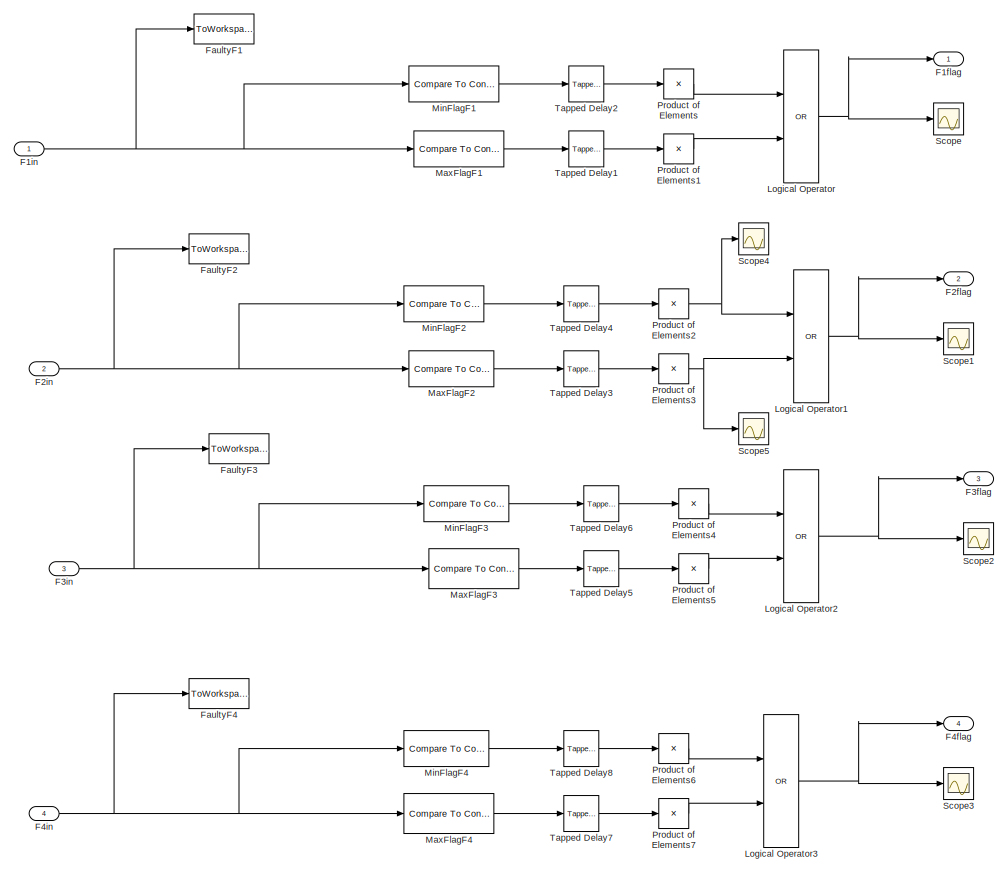
[diagram: Interlock activation conditions - part 1/2, full width, top band]
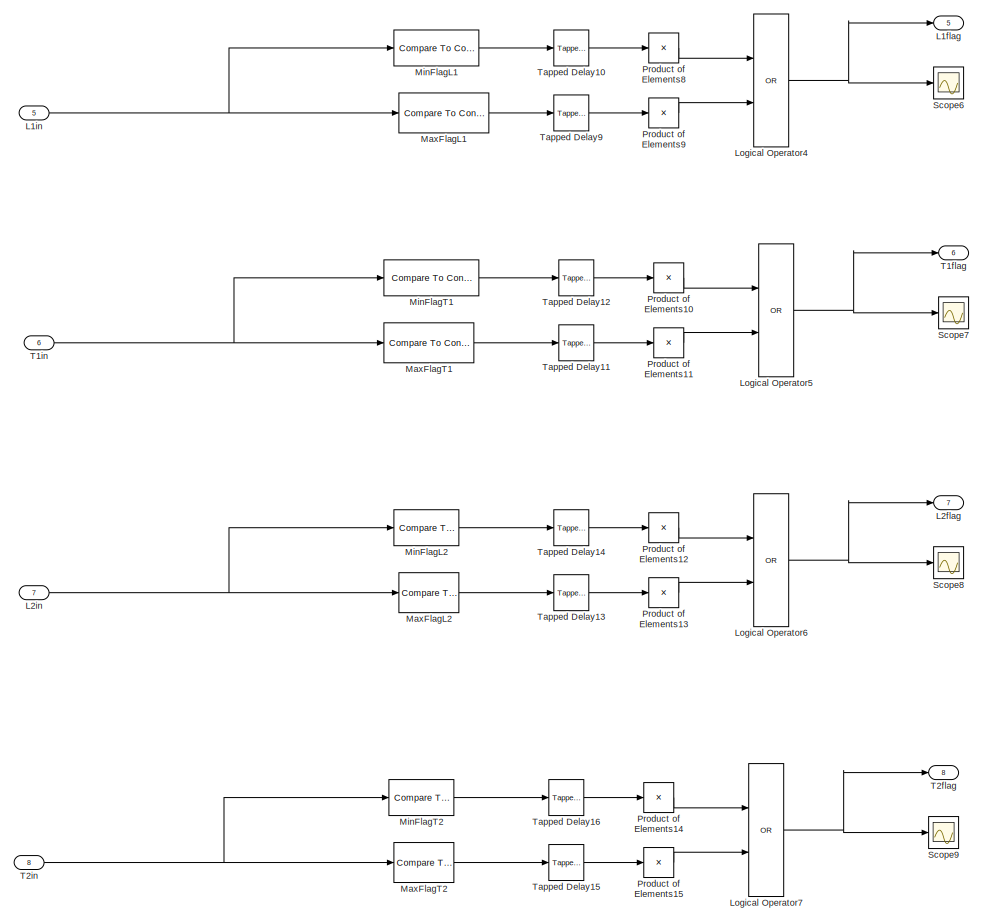
[diagram: Interlock activation conditions - part 2/2, full width, bottom band]
BLOCK [SubSystem] Interlock activation conditions
  Ports = [8, 8]
  RequestExecContextInheritance = off
  Variant = off
BLOCK [Outport] Interlock activation conditions/F1flag
  IconDisplay = Port number
BLOCK [Inport] Interlock activation conditions/F1in
  IconDisplay = Port number
BLOCK [Outport] Interlock activation conditions/F2flag
  IconDisplay = Port number
  Port = 2
BLOCK [Inport] Interlock activation conditions/F2in 
  IconDisplay = Port number
  Port = 2
BLOCK [Outport] Interlock activation conditions/F3flag
  IconDisplay = Port number
  Port = 3
BLOCK [Inport] Interlock activation conditions/F3in
  IconDisplay = Port number
  Port = 3
BLOCK [Outport] Interlock activation conditions/F4flag
  IconDisplay = Port number
  Port = 4
BLOCK [Inport] Interlock activation conditions/F4in
  IconDisplay = Port number
  Port = 4
BLOCK [ToWorkspace] Interlock activation conditions/FaultyF1
  FixptAsFi = on
  MaxDataPoints = inf
  Ports = [1]
  SampleTime = -1
  Save2DSignal = 3-D array (concatenate along third dimension)
  SaveFormat = Timeseries
  VariableName = FaultyF1
BLOCK [ToWorkspace] Interlock activation conditions/FaultyF2
  FixptAsFi = on
  MaxDataPoints = inf
  Ports = [1]
  SampleTime = -1
  Save2DSignal = 3-D array (concatenate along third dimension)
  SaveFormat = Timeseries
  VariableName = FaultyF2
BLOCK [ToWorkspace] Interlock activation conditions/FaultyF3
  FixptAsFi = on
  MaxDataPoints = inf
  Ports = [1]
  SampleTime = -1
  Save2DSignal = 3-D array (concatenate along third dimension)
  SaveFormat = Timeseries
  VariableName = FaultyF3
BLOCK [ToWorkspace] Interlock activation conditions/FaultyF4
  FixptAsFi = on
  MaxDataPoints = inf
  Ports = [1]
  SampleTime = -1
  Save2DSignal = 3-D array (concatenate along third dimension)
  SaveFormat = Timeseries
  VariableName = FaultyF4
BLOCK [Outport] Interlock activation conditions/L1flag
  IconDisplay = Port number
  Port = 5
BLOCK [Inport] Interlock activation conditions/L1in
  IconDisplay = Port number
  Port = 5
BLOCK [Outport] Interlock activation conditions/L2flag
  IconDisplay = Port number
  Port = 7
BLOCK [Inport] Interlock activation conditions/L2in
  IconDisplay = Port number
  Port = 7
BLOCK [Logic] Interlock activation conditions/Logical Operator
  AllPortsSameDT = off
  Operator = OR
  OutDataTypeStr = boolean
  Ports = [2, 1]
BLOCK [Logic] Interlock activation conditions/Logical Operator1
  AllPortsSameDT = off
  Operator = OR
  OutDataTypeStr = boolean
  Ports = [2, 1]
BLOCK [Logic] Interlock activation conditions/Logical Operator2
  AllPortsSameDT = off
  Operator = OR
  OutDataTypeStr = boolean
  Ports = [2, 1]
BLOCK [Logic] Interlock activation conditions/Logical Operator3
  AllPortsSameDT = off
  Operator = OR
  OutDataTypeStr = boolean
  Ports = [2, 1]
BLOCK [Logic] Interlock activation conditions/Logical Operator4
  AllPortsSameDT = off
  Operator = OR
  OutDataTypeStr = boolean
  Ports = [2, 1]
BLOCK [Logic] Interlock activation conditions/Logical Operator5
  AllPortsSameDT = off
  Operator = OR
  OutDataTypeStr = boolean
  Ports = [2, 1]
BLOCK [Logic] Interlock activation conditions/Logical Operator6
  AllPortsSameDT = off
  Operator = OR
  OutDataTypeStr = boolean
  Ports = [2, 1]
BLOCK [Logic] Interlock activation conditions/Logical Operator7
  AllPortsSameDT = off
  Operator = OR
  OutDataTypeStr = boolean
  Ports = [2, 1]
BLOCK [Reference] Interlock activation conditions/MaxFlagF1  REF=simulink/Logic and Bit
Operations/Compare
To Constant
  Ports = [1, 1]
  SourceBlock = simulink/Logic and Bit\nOperations/Compare\nTo Constant
  SourceProductBaseCode = SL
  SourceProductName = Simulink
  SourceType = Compare To Constant
BLOCK [Reference] Interlock activation conditions/MaxFlagF2  REF=simulink/Logic and Bit
Operations/Compare
To Constant
  Ports = [1, 1]
  SourceBlock = simulink/Logic and Bit\nOperations/Compare\nTo Constant
  SourceProductBaseCode = SL
  SourceProductName = Simulink
  SourceType = Compare To Constant
BLOCK [Reference] Interlock activation conditions/MaxFlagF3  REF=simulink/Logic and Bit
Operations/Compare
To Constant
  Ports = [1, 1]
  SourceBlock = simulink/Logic and Bit\nOperations/Compare\nTo Constant
  SourceProductBaseCode = SL
  SourceProductName = Simulink
  SourceType = Compare To Constant
BLOCK [Reference] Interlock activation conditions/MaxFlagF4  REF=simulink/Logic and Bit
Operations/Compare
To Constant
  Ports = [1, 1]
  SourceBlock = simulink/Logic and Bit\nOperations/Compare\nTo Constant
  SourceProductBaseCode = SL
  SourceProductName = Simulink
  SourceType = Compare To Constant
BLOCK [Reference] Interlock activation conditions/MaxFlagL1  REF=simulink/Logic and Bit
Operations/Compare
To Constant
  Ports = [1, 1]
  SourceBlock = simulink/Logic and Bit\nOperations/Compare\nTo Constant
  SourceProductBaseCode = SL
  SourceProductName = Simulink
  SourceType = Compare To Constant
BLOCK [Reference] Interlock activation conditions/MaxFlagL2  REF=simulink/Logic and Bit
Operations/Compare
To Constant
  Ports = [1, 1]
  SourceBlock = simulink/Logic and Bit\nOperations/Compare\nTo Constant
  SourceProductBaseCode = SL
  SourceProductName = Simulink
  SourceType = Compare To Constant
BLOCK [Reference] Interlock activation conditions/MaxFlagT1  REF=simulink/Logic and Bit
Operations/Compare
To Constant
  Ports = [1, 1]
  SourceBlock = simulink/Logic and Bit\nOperations/Compare\nTo Constant
  SourceProductBaseCode = SL
  SourceProductName = Simulink
  SourceType = Compare To Constant
BLOCK [Reference] Interlock activation conditions/MaxFlagT2  REF=simulink/Logic and Bit
Operations/Compare
To Constant
  Ports = [1, 1]
  SourceBlock = simulink/Logic and Bit\nOperations/Compare\nTo Constant
  SourceProductBaseCode = SL
  SourceProductName = Simulink
  SourceType = Compare To Constant
BLOCK [Reference] Interlock activation conditions/MinFlagF1  REF=simulink/Logic and Bit
Operations/Compare
To Constant
  Ports = [1, 1]
  SourceBlock = simulink/Logic and Bit\nOperations/Compare\nTo Constant
  SourceProductBaseCode = SL
  SourceProductName = Simulink
  SourceType = Compare To Constant
BLOCK [Reference] Interlock activation conditions/MinFlagF2  REF=simulink/Logic and Bit
Operations/Compare
To Constant
  Ports = [1, 1]
  SourceBlock = simulink/Logic and Bit\nOperations/Compare\nTo Constant
  SourceProductBaseCode = SL
  SourceProductName = Simulink
  SourceType = Compare To Constant
BLOCK [Reference] Interlock activation conditions/MinFlagF3  REF=simulink/Logic and Bit
Operations/Compare
To Constant
  Ports = [1, 1]
  SourceBlock = simulink/Logic and Bit\nOperations/Compare\nTo Constant
  SourceProductBaseCode = SL
  SourceProductName = Simulink
  SourceType = Compare To Constant
BLOCK [Reference] Interlock activation conditions/MinFlagF4  REF=simulink/Logic and Bit
Operations/Compare
To Constant
  Ports = [1, 1]
  SourceBlock = simulink/Logic and Bit\nOperations/Compare\nTo Constant
  SourceProductBaseCode = SL
  SourceProductName = Simulink
  SourceType = Compare To Constant
BLOCK [Reference] Interlock activation conditions/MinFlagL1  REF=simulink/Logic and Bit
Operations/Compare
To Constant
  Ports = [1, 1]
  SourceBlock = simulink/Logic and Bit\nOperations/Compare\nTo Constant
  SourceProductBaseCode = SL
  SourceProductName = Simulink
  SourceType = Compare To Constant
BLOCK [Reference] Interlock activation conditions/MinFlagL2  REF=simulink/Logic and Bit
Operations/Compare
To Constant
  Ports = [1, 1]
  SourceBlock = simulink/Logic and Bit\nOperations/Compare\nTo Constant
  SourceProductBaseCode = SL
  SourceProductName = Simulink
  SourceType = Compare To Constant
BLOCK [Reference] Interlock activation conditions/MinFlagT1  REF=simulink/Logic and Bit
Operations/Compare
To Constant
  Ports = [1, 1]
  SourceBlock = simulink/Logic and Bit\nOperations/Compare\nTo Constant
  SourceProductBaseCode = SL
  SourceProductName = Simulink
  SourceType = Compare To Constant
BLOCK [Reference] Interlock activation conditions/MinFlagT2  REF=simulink/Logic and Bit
Operations/Compare
To Constant
  Ports = [1, 1]
  SourceBlock = simulink/Logic and Bit\nOperations/Compare\nTo Constant
  SourceProductBaseCode = SL
  SourceProductName = Simulink
  SourceType = Compare To Constant
BLOCK [Product] Interlock activation conditions/Product of Elements
  InputSameDT = off
  Inputs = *
  OutDataTypeStr = Inherit: Inherit via internal rule
  Ports = [1, 1]
  RndMeth = Floor
  SaturateOnIntegerOverflow = off
BLOCK [Product] Interlock activation conditions/Product of Elements1
  InputSameDT = off
  Inputs = *
  OutDataTypeStr = Inherit: Inherit via internal rule
  Ports = [1, 1]
  RndMeth = Floor
  SaturateOnIntegerOverflow = off
BLOCK [Product] Interlock activation conditions/Product of Elements10
  InputSameDT = off
  Inputs = *
  OutDataTypeStr = Inherit: Inherit via internal rule
  Ports = [1, 1]
  RndMeth = Floor
  SaturateOnIntegerOverflow = off
BLOCK [Product] Interlock activation conditions/Product of Elements11
  InputSameDT = off
  Inputs = *
  OutDataTypeStr = Inherit: Inherit via internal rule
  Ports = [1, 1]
  RndMeth = Floor
  SaturateOnIntegerOverflow = off
BLOCK [Product] Interlock activation conditions/Product of Elements12
  InputSameDT = off
  Inputs = *
  OutDataTypeStr = Inherit: Inherit via internal rule
  Ports = [1, 1]
  RndMeth = Floor
  SaturateOnIntegerOverflow = off
BLOCK [Product] Interlock activation conditions/Product of Elements13
  InputSameDT = off
  Inputs = *
  OutDataTypeStr = Inherit: Inherit via internal rule
  Ports = [1, 1]
  RndMeth = Floor
  SaturateOnIntegerOverflow = off
BLOCK [Product] Interlock activation conditions/Product of Elements14
  InputSameDT = off
  Inputs = *
  OutDataTypeStr = Inherit: Inherit via internal rule
  Ports = [1, 1]
  RndMeth = Floor
  SaturateOnIntegerOverflow = off
BLOCK [Product] Interlock activation conditions/Product of Elements15
  InputSameDT = off
  Inputs = *
  OutDataTypeStr = Inherit: Inherit via internal rule
  Ports = [1, 1]
  RndMeth = Floor
  SaturateOnIntegerOverflow = off
BLOCK [Product] Interlock activation conditions/Product of Elements2
  InputSameDT = off
  Inputs = *
  OutDataTypeStr = Inherit: Inherit via internal rule
  Ports = [1, 1]
  RndMeth = Floor
  SaturateOnIntegerOverflow = off
BLOCK [Product] Interlock activation conditions/Product of Elements3
  InputSameDT = off
  Inputs = *
  OutDataTypeStr = Inherit: Inherit via internal rule
  Ports = [1, 1]
  RndMeth = Floor
  SaturateOnIntegerOverflow = off
BLOCK [Product] Interlock activation conditions/Product of Elements4
  InputSameDT = off
  Inputs = *
  OutDataTypeStr = Inherit: Inherit via internal rule
  Ports = [1, 1]
  RndMeth = Floor
  SaturateOnIntegerOverflow = off
BLOCK [Product] Interlock activation conditions/Product of Elements5
  InputSameDT = off
  Inputs = *
  OutDataTypeStr = Inherit: Inherit via internal rule
  Ports = [1, 1]
  RndMeth = Floor
  SaturateOnIntegerOverflow = off
BLOCK [Product] Interlock activation conditions/Product of Elements6
  InputSameDT = off
  Inputs = *
  OutDataTypeStr = Inherit: Inherit via internal rule
  Ports = [1, 1]
  RndMeth = Floor
  SaturateOnIntegerOverflow = off
BLOCK [Product] Interlock activation conditions/Product of Elements7
  InputSameDT = off
  Inputs = *
  OutDataTypeStr = Inherit: Inherit via internal rule
  Ports = [1, 1]
  RndMeth = Floor
  SaturateOnIntegerOverflow = off
BLOCK [Product] Interlock activation conditions/Product of Elements8
  InputSameDT = off
  Inputs = *
  OutDataTypeStr = Inherit: Inherit via internal rule
  Ports = [1, 1]
  RndMeth = Floor
  SaturateOnIntegerOverflow = off
BLOCK [Product] Interlock activation conditions/Product of Elements9
  InputSameDT = off
  Inputs = *
  OutDataTypeStr = Inherit: Inherit via internal rule
  Ports = [1, 1]
  RndMeth = Floor
  SaturateOnIntegerOverflow = off
BLOCK [Scope] Interlock activation conditions/Scope
  NumInputPorts = 1
  Ports = [1]
  ScopeSpecificationString = Simulink.scopes.TimeScopeBlockCfg('CurrentConfiguration', extmgr.ConfigurationSet(extmgr.Configuration('Core','General UI',true),extmgr.Configuration('Core','Source UI',true),extmgr.Configuration('Sources','WiredSimulink',true,'DataLoggingVariableName','ScopeData1'),extmgr.Configuration('Visuals','Time Domain',true,'SerializedDisplays',{struct('MinYLimReal','-0.125','MaxYLimReal','1.125','YLabelRe...<+1363ch>
BLOCK [Scope] Interlock activation conditions/Scope1
  NumInputPorts = 1
  Ports = [1]
  ScopeSpecificationString = Simulink.scopes.TimeScopeBlockCfg('CurrentConfiguration', extmgr.ConfigurationSet(extmgr.Configuration('Core','General UI',true),extmgr.Configuration('Core','Source UI',true),extmgr.Configuration('Sources','WiredSimulink',true,'DataLoggingVariableName','ScopeData2'),extmgr.Configuration('Visuals','Time Domain',true,'SerializedDisplays',{struct('MinYLimReal','-0.125','MaxYLimReal','1.125','YLabelRe...<+1364ch>
BLOCK [Scope] Interlock activation conditions/Scope2
  NumInputPorts = 1
  Ports = [1]
  ScopeSpecificationString = Simulink.scopes.TimeScopeBlockCfg('CurrentConfiguration', extmgr.ConfigurationSet(extmgr.Configuration('Core','General UI',true),extmgr.Configuration('Core','Source UI',true),extmgr.Configuration('Sources','WiredSimulink',true,'DataLoggingVariableName','ScopeData3'),extmgr.Configuration('Visuals','Time Domain',true,'SerializedDisplays',{struct('MinYLimReal','-1.00000','MaxYLimReal','1.00000','YLab...<+1376ch>
BLOCK [Scope] Interlock activation conditions/Scope3
  NumInputPorts = 1
  Ports = [1]
  ScopeSpecificationString = Simulink.scopes.TimeScopeBlockCfg('CurrentConfiguration', extmgr.ConfigurationSet(extmgr.Configuration('Core','General UI',true),extmgr.Configuration('Core','Source UI',true),extmgr.Configuration('Sources','WiredSimulink',true,'DataLoggingVariableName','ScopeData4'),extmgr.Configuration('Visuals','Time Domain',true,'SerializedDisplays',{struct('MinYLimReal','-0.125','MaxYLimReal','1.125','YLabelRe...<+1364ch>
BLOCK [Scope] Interlock activation conditions/Scope4
  NumInputPorts = 1
  Ports = [1]
  ScopeSpecificationString = Simulink.scopes.TimeScopeBlockCfg('CurrentConfiguration', extmgr.ConfigurationSet(extmgr.Configuration('Core','General UI',true),extmgr.Configuration('Core','Source UI',true),extmgr.Configuration('Sources','WiredSimulink',true,'DataLoggingVariableName','ScopeData14'),extmgr.Configuration('Visuals','Time Domain',true,'SerializedDisplays',{struct('MinYLimReal','-0.125','MaxYLimReal','1.125','YLabelR...<+1368ch>
BLOCK [Scope] Interlock activation conditions/Scope5
  NumInputPorts = 1
  Ports = [1]
  ScopeSpecificationString = Simulink.scopes.TimeScopeBlockCfg('CurrentConfiguration', extmgr.ConfigurationSet(extmgr.Configuration('Core','General UI',true),extmgr.Configuration('Core','Source UI',true),extmgr.Configuration('Sources','WiredSimulink',true,'DataLoggingVariableName','ScopeData15'),extmgr.Configuration('Visuals','Time Domain',true,'SerializedDisplays',{struct('MinYLimReal','-1.00000','MaxYLimReal','1.00000','YLa...<+1380ch>
BLOCK [Scope] Interlock activation conditions/Scope6
  NumInputPorts = 1
  Ports = [1]
  ScopeSpecificationString = Simulink.scopes.TimeScopeBlockCfg('CurrentConfiguration', extmgr.ConfigurationSet(extmgr.Configuration('Core','General UI',true),extmgr.Configuration('Core','Source UI',true),extmgr.Configuration('Sources','WiredSimulink',true,'DataLoggingVariableName','ScopeData16'),extmgr.Configuration('Visuals','Time Domain',true,'SerializedDisplays',{struct('MinYLimReal','-0.125','MaxYLimReal','1.125','YLabelR...<+1365ch>
BLOCK [Scope] Interlock activation conditions/Scope7
  NumInputPorts = 1
  Ports = [1]
  ScopeSpecificationString = Simulink.scopes.TimeScopeBlockCfg('CurrentConfiguration', extmgr.ConfigurationSet(extmgr.Configuration('Core','General UI',true),extmgr.Configuration('Core','Source UI',true),extmgr.Configuration('Sources','WiredSimulink',true,'DataLoggingVariableName','ScopeData17'),extmgr.Configuration('Visuals','Time Domain',true,'SerializedDisplays',{struct('MinYLimReal','-0.125','MaxYLimReal','1.125','YLabelR...<+1365ch>
BLOCK [Scope] Interlock activation conditions/Scope8
  NumInputPorts = 1
  Ports = [1]
  ScopeSpecificationString = Simulink.scopes.TimeScopeBlockCfg('CurrentConfiguration', extmgr.ConfigurationSet(extmgr.Configuration('Core','General UI',true),extmgr.Configuration('Core','Source UI',true),extmgr.Configuration('Sources','WiredSimulink',true,'DataLoggingVariableName','ScopeData18'),extmgr.Configuration('Visuals','Time Domain',true,'SerializedDisplays',{struct('MinYLimReal','-0.125','MaxYLimReal','1.125','YLabelR...<+1365ch>
BLOCK [Scope] Interlock activation conditions/Scope9
  NumInputPorts = 1
  Ports = [1]
  ScopeSpecificationString = Simulink.scopes.TimeScopeBlockCfg('CurrentConfiguration', extmgr.ConfigurationSet(extmgr.Configuration('Core','General UI',true),extmgr.Configuration('Core','Source UI',true),extmgr.Configuration('Sources','WiredSimulink',true,'DataLoggingVariableName','ScopeData19'),extmgr.Configuration('Visuals','Time Domain',true,'SerializedDisplays',{struct('MinYLimReal','-0.125','MaxYLimReal','1.125','YLabelR...<+1365ch>
BLOCK [Outport] Interlock activation conditions/T1flag
  IconDisplay = Port number
  Port = 6
BLOCK [Inport] Interlock activation conditions/T1in
  IconDisplay = Port number
  Port = 6
BLOCK [Outport] Interlock activation conditions/T2flag
  IconDisplay = Port number
  Port = 8
BLOCK [Inport] Interlock activation conditions/T2in
  IconDisplay = Port number
  Port = 8
BLOCK [Reference] Interlock activation conditions/Tapped Delay1  REF=simulink/Discrete/Tapped Delay
  Ports = [1, 1]
  SourceBlock = simulink/Discrete/Tapped Delay
  SourceProductBaseCode = SL
  SourceProductName = Simulink
  SourceType = Tapped Delay Line
BLOCK [Reference] Interlock activation conditions/Tapped Delay10  REF=simulink/Discrete/Tapped Delay
  Ports = [1, 1]
  SourceBlock = simulink/Discrete/Tapped Delay
  SourceProductBaseCode = SL
  SourceProductName = Simulink
  SourceType = Tapped Delay Line
BLOCK [Reference] Interlock activation conditions/Tapped Delay11  REF=simulink/Discrete/Tapped Delay
  Ports = [1, 1]
  SourceBlock = simulink/Discrete/Tapped Delay
  SourceProductBaseCode = SL
  SourceProductName = Simulink
  SourceType = Tapped Delay Line
BLOCK [Reference] Interlock activation conditions/Tapped Delay12  REF=simulink/Discrete/Tapped Delay
  Ports = [1, 1]
  SourceBlock = simulink/Discrete/Tapped Delay
  SourceProductBaseCode = SL
  SourceProductName = Simulink
  SourceType = Tapped Delay Line
BLOCK [Reference] Interlock activation conditions/Tapped Delay13  REF=simulink/Discrete/Tapped Delay
  Ports = [1, 1]
  SourceBlock = simulink/Discrete/Tapped Delay
  SourceProductBaseCode = SL
  SourceProductName = Simulink
  SourceType = Tapped Delay Line
BLOCK [Reference] Interlock activation conditions/Tapped Delay14  REF=simulink/Discrete/Tapped Delay
  Ports = [1, 1]
  SourceBlock = simulink/Discrete/Tapped Delay
  SourceProductBaseCode = SL
  SourceProductName = Simulink
  SourceType = Tapped Delay Line
BLOCK [Reference] Interlock activation conditions/Tapped Delay15  REF=simulink/Discrete/Tapped Delay
  Ports = [1, 1]
  SourceBlock = simulink/Discrete/Tapped Delay
  SourceProductBaseCode = SL
  SourceProductName = Simulink
  SourceType = Tapped Delay Line
BLOCK [Reference] Interlock activation conditions/Tapped Delay16  REF=simulink/Discrete/Tapped Delay
  Ports = [1, 1]
  SourceBlock = simulink/Discrete/Tapped Delay
  SourceProductBaseCode = SL
  SourceProductName = Simulink
  SourceType = Tapped Delay Line
BLOCK [Reference] Interlock activation conditions/Tapped Delay2  REF=simulink/Discrete/Tapped Delay
  Ports = [1, 1]
  SourceBlock = simulink/Discrete/Tapped Delay
  SourceProductBaseCode = SL
  SourceProductName = Simulink
  SourceType = Tapped Delay Line
BLOCK [Reference] Interlock activation conditions/Tapped Delay3  REF=simulink/Discrete/Tapped Delay
  Ports = [1, 1]
  SourceBlock = simulink/Discrete/Tapped Delay
  SourceProductBaseCode = SL
  SourceProductName = Simulink
  SourceType = Tapped Delay Line
BLOCK [Reference] Interlock activation conditions/Tapped Delay4  REF=simulink/Discrete/Tapped Delay
  Ports = [1, 1]
  SourceBlock = simulink/Discrete/Tapped Delay
  SourceProductBaseCode = SL
  SourceProductName = Simulink
  SourceType = Tapped Delay Line
BLOCK [Reference] Interlock activation conditions/Tapped Delay5  REF=simulink/Discrete/Tapped Delay
  Ports = [1, 1]
  SourceBlock = simulink/Discrete/Tapped Delay
  SourceProductBaseCode = SL
  SourceProductName = Simulink
  SourceType = Tapped Delay Line
BLOCK [Reference] Interlock activation conditions/Tapped Delay6  REF=simulink/Discrete/Tapped Delay
  Ports = [1, 1]
  SourceBlock = simulink/Discrete/Tapped Delay
  SourceProductBaseCode = SL
  SourceProductName = Simulink
  SourceType = Tapped Delay Line
BLOCK [Reference] Interlock activation conditions/Tapped Delay7  REF=simulink/Discrete/Tapped Delay
  Ports = [1, 1]
  SourceBlock = simulink/Discrete/Tapped Delay
  SourceProductBaseCode = SL
  SourceProductName = Simulink
  SourceType = Tapped Delay Line
BLOCK [Reference] Interlock activation conditions/Tapped Delay8  REF=simulink/Discrete/Tapped Delay
  Ports = [1, 1]
  SourceBlock = simulink/Discrete/Tapped Delay
  SourceProductBaseCode = SL
  SourceProductName = Simulink
  SourceType = Tapped Delay Line
BLOCK [Reference] Interlock activation conditions/Tapped Delay9  REF=simulink/Discrete/Tapped Delay
  Ports = [1, 1]
  SourceBlock = simulink/Discrete/Tapped Delay
  SourceProductBaseCode = SL
  SourceProductName = Simulink
  SourceType = Tapped Delay Line
BLOCK [Mux] Mux
  DisplayOption = bar
  Inputs = 8
  Ports = [8, 1]
BLOCK [Scope] Scope
  IOType = viewer
  NumInputPorts = 1
  Ports = []
  ScopeSpecificationString = Simulink.scopes.TimeScopeBlockCfg('CurrentConfiguration', extmgr.ConfigurationSet(extmgr.Configuration('Core','General UI',true),extmgr.Configuration('Core','Source UI',true),extmgr.Configuration('Sources','WiredSimulink',true),extmgr.Configuration('Visuals','Time Domain',true,'SerializedDisplays',{struct('MinYLimReal','16.48295','MaxYLimReal','101.65349','YLabelReal','','MinYLimMag','16.48295','M...<+1355ch>
BLOCK [Scope] Scope1
  IOType = viewer
  NumInputPorts = 1
  Ports = []
  ScopeSpecificationString = Simulink.scopes.TimeScopeBlockCfg('CurrentConfiguration', extmgr.ConfigurationSet(extmgr.Configuration('Core','General UI',true),extmgr.Configuration('Core','Source UI',true),extmgr.Configuration('Sources','WiredSimulink',true,'DataLoggingVariableName','ScopeData1'),extmgr.Configuration('Visuals','Time Domain',true,'SerializedDisplays',{struct('MinYLimReal','0.5121','MaxYLimReal','2.7806','YLabelR...<+1422ch>
BLOCK [Scope] Scope10
  IOType = viewer
  NumInputPorts = 1
  Ports = []
  ScopeSpecificationString = Simulink.scopes.TimeScopeBlockCfg('CurrentConfiguration', extmgr.ConfigurationSet(extmgr.Configuration('Core','General UI',true),extmgr.Configuration('Core','Source UI',true),extmgr.Configuration('Sources','WiredSimulink',true,'DataLoggingVariableName','ScopeData3'),extmgr.Configuration('Visuals','Time Domain',true,'SerializedDisplays',{struct('MinYLimReal','2.99967','MaxYLimReal','3.00293','YLabe...<+1357ch>
BLOCK [Scope] Scope11
  IOType = viewer
  NumInputPorts = 1
  Ports = []
  ScopeSpecificationString = Simulink.scopes.TimeScopeBlockCfg('CurrentConfiguration', extmgr.ConfigurationSet(extmgr.Configuration('Core','General UI',true),extmgr.Configuration('Core','Source UI',true),extmgr.Configuration('Sources','WiredSimulink',true,'DataLoggingVariableName','ScopeData4'),extmgr.Configuration('Visuals','Time Domain',true,'SerializedDisplays',{struct('MinYLimReal','46.73436','MaxYLimReal','50.36285','YLa...<+1365ch>
BLOCK [Scope] Scope12
  IOType = viewer
  NumInputPorts = 1
  Ports = []
  ScopeSpecificationString = Simulink.scopes.TimeScopeBlockCfg('CurrentConfiguration', extmgr.ConfigurationSet(extmgr.Configuration('Core','General UI',true,'FigureColor',[1 1 1]),extmgr.Configuration('Core','Source UI',true),extmgr.Configuration('Sources','WiredSimulink',true,'DataLoggingVariableName','ScopeData1'),extmgr.Configuration('Visuals','Time Domain',true,'SerializedDisplays',{struct('MinYLimReal','1.99315','MaxYLim...<+1506ch>
BLOCK [Scope] Scope13
  IOType = viewer
  NumInputPorts = 1
  Ports = []
  ScopeSpecificationString = Simulink.scopes.TimeScopeBlockCfg('CurrentConfiguration', extmgr.ConfigurationSet(extmgr.Configuration('Core','General UI',true,'FigureColor',[1 1 1]),extmgr.Configuration('Core','Source UI',true),extmgr.Configuration('Sources','WiredSimulink',true,'DataLoggingVariableName','ScopeData2'),extmgr.Configuration('Visuals','Time Domain',true,'SerializedDisplays',{struct('MinYLimReal','2.56684','MaxYLim...<+1506ch>
BLOCK [Scope] Scope14
  IOType = viewer
  NumInputPorts = 1
  Ports = []
  ScopeSpecificationString = Simulink.scopes.TimeScopeBlockCfg('CurrentConfiguration', extmgr.ConfigurationSet(extmgr.Configuration('Core','General UI',true,'FigureColor',[1 1 1]),extmgr.Configuration('Core','Source UI',true),extmgr.Configuration('Sources','WiredSimulink',true,'DataLoggingVariableName','ScopeData3'),extmgr.Configuration('Visuals','Time Domain',true,'SerializedDisplays',{struct('MinYLimReal','47.25527','MaxYLi...<+1558ch>
BLOCK [Scope] Scope15
  IOType = viewer
  NumInputPorts = 1
  Ports = []
  ScopeSpecificationString = Simulink.scopes.TimeScopeBlockCfg('CurrentConfiguration', extmgr.ConfigurationSet(extmgr.Configuration('Core','General UI',true,'FigureColor',[1 1 1]),extmgr.Configuration('Core','Source UI',true),extmgr.Configuration('Sources','WiredSimulink',true,'DataLoggingVariableName','ScopeData4'),extmgr.Configuration('Visuals','Time Domain',true,'SerializedDisplays',{struct('MinYLimReal','45.37644','MaxYLi...<+1529ch>
BLOCK [Scope] Scope16
  IOType = viewer
  NumInputPorts = 1
  Ports = []
  ScopeSpecificationString = Simulink.scopes.TimeScopeBlockCfg('CurrentConfiguration', extmgr.ConfigurationSet(extmgr.Configuration('Core','General UI',true),extmgr.Configuration('Core','Source UI',true),extmgr.Configuration('Sources','WiredSimulink',true,'DataLoggingVariableName','ScopeData5'),extmgr.Configuration('Visuals','Time Domain',true,'SerializedDisplays',{struct('MinYLimReal','0.74143','MaxYLimReal','2.45846','YLabe...<+1357ch>
BLOCK [Scope] Scope17
  IOType = viewer
  NumInputPorts = 1
  Ports = []
  ScopeSpecificationString = Simulink.scopes.TimeScopeBlockCfg('CurrentConfiguration', extmgr.ConfigurationSet(extmgr.Configuration('Core','General UI',true),extmgr.Configuration('Core','Source UI',true),extmgr.Configuration('Sources','WiredSimulink',true,'DataLoggingVariableName','ScopeData15'),extmgr.Configuration('Visuals','Time Domain',true,'SerializedDisplays',{struct('MinYLimReal','-0.02824','MaxYLimReal','0.25414','YLa...<+1389ch>
BLOCK [Scope] Scope18
  IOType = viewer
  NumInputPorts = 1
  Ports = []
  ScopeSpecificationString = Simulink.scopes.TimeScopeBlockCfg('CurrentConfiguration', extmgr.ConfigurationSet(extmgr.Configuration('Core','General UI',true,'FigureColor',[1 1 1]),extmgr.Configuration('Core','Source UI',true),extmgr.Configuration('Sources','WiredSimulink',true,'DataLoggingVariableName','ScopeData19'),extmgr.Configuration('Visuals','Time Domain',true,'SerializedDisplays',{struct('MinYLimReal','1.97586','MaxYLi...<+1507ch>
BLOCK [Scope] Scope19
  IOType = viewer
  NumInputPorts = 1
  Ports = []
  ScopeSpecificationString = Simulink.scopes.TimeScopeBlockCfg('CurrentConfiguration', extmgr.ConfigurationSet(extmgr.Configuration('Core','General UI',true,'FigureColor',[1 1 1]),extmgr.Configuration('Core','Source UI',true),extmgr.Configuration('Sources','WiredSimulink',true,'DataLoggingVariableName','ScopeData20'),extmgr.Configuration('Visuals','Time Domain',true,'SerializedDisplays',{struct('MinYLimReal','2.5775','MaxYLim...<+1493ch>
BLOCK [Scope] Scope2
  IOType = viewer
  NumInputPorts = 1
  Ports = []
  ScopeSpecificationString = Simulink.scopes.TimeScopeBlockCfg('CurrentConfiguration', extmgr.ConfigurationSet(extmgr.Configuration('Core','General UI',true),extmgr.Configuration('Core','Source UI',true),extmgr.Configuration('Sources','WiredSimulink',true,'DataLoggingVariableName','ScopeData2'),extmgr.Configuration('Visuals','Time Domain',true,'SerializedDisplays',{struct('MinYLimReal','34.89856','MaxYLimReal','72.64454','YLa...<+1438ch>
BLOCK [Scope] Scope20
  IOType = viewer
  NumInputPorts = 1
  Ports = []
  ScopeSpecificationString = Simulink.scopes.TimeScopeBlockCfg('CurrentConfiguration', extmgr.ConfigurationSet(extmgr.Configuration('Core','General UI',true,'FigureColor',[1 1 1]),extmgr.Configuration('Core','Source UI',true),extmgr.Configuration('Sources','WiredSimulink',true,'DataLoggingVariableName','ScopeData21'),extmgr.Configuration('Visuals','Time Domain',true,'SerializedDisplays',{struct('MinYLimReal','84.1555','MaxYLi...<+1526ch>
BLOCK [Scope] Scope21
  IOType = viewer
  NumInputPorts = 1
  Ports = []
  ScopeSpecificationString = Simulink.scopes.TimeScopeBlockCfg('CurrentConfiguration', extmgr.ConfigurationSet(extmgr.Configuration('Core','General UI',true,'FigureColor',[1 1 1]),extmgr.Configuration('Core','Source UI',true),extmgr.Configuration('Sources','WiredSimulink',true,'DataLoggingVariableName','ScopeData22'),extmgr.Configuration('Visuals','Time Domain',true,'SerializedDisplays',{struct('MinYLimReal','78.89528','MaxYL...<+1559ch>
BLOCK [Scope] Scope3
  IOType = viewer
  NumInputPorts = 1
  Ports = []
  ScopeSpecificationString = Simulink.scopes.TimeScopeBlockCfg('CurrentConfiguration', extmgr.ConfigurationSet(extmgr.Configuration('Core','General UI',true),extmgr.Configuration('Core','Source UI',true),extmgr.Configuration('Sources','WiredSimulink',true,'DataLoggingVariableName','ScopeData3'),extmgr.Configuration('Visuals','Time Domain',true,'SerializedDisplays',{struct('MinYLimReal','-0.32943','MaxYLimReal','3.37287','YLab...<+1407ch>
BLOCK [Scope] Scope4
  IOType = viewer
  NumInputPorts = 1
  Ports = []
  ScopeSpecificationString = Simulink.scopes.TimeScopeBlockCfg('CurrentConfiguration', extmgr.ConfigurationSet(extmgr.Configuration('Core','General UI',true,'FigureColor',[1 1 1]),extmgr.Configuration('Core','Source UI',true),extmgr.Configuration('Sources','WiredSimulink',true,'DataLoggingVariableName','ScopeData1'),extmgr.Configuration('Visuals','Time Domain',true,'SerializedDisplays',{struct('MinYLimReal','0.74143','MaxYLim...<+1504ch>
BLOCK [Scope] Scope5
  IOType = viewer
  NumInputPorts = 1
  Ports = []
  ScopeSpecificationString = Simulink.scopes.TimeScopeBlockCfg('CurrentConfiguration', extmgr.ConfigurationSet(extmgr.Configuration('Core','General UI',true),extmgr.Configuration('Core','Source UI',true),extmgr.Configuration('Sources','WiredSimulink',true,'DataLoggingVariableName','ScopeData2'),extmgr.Configuration('Visuals','Time Domain',true,'SerializedDisplays',{struct('MinYLimReal','38.32758','MaxYLimReal','55.51618','YLa...<+1438ch>
BLOCK [Scope] Scope6
  IOType = viewer
  NumInputPorts = 1
  Ports = []
  ScopeSpecificationString = Simulink.scopes.TimeScopeBlockCfg('CurrentConfiguration', extmgr.ConfigurationSet(extmgr.Configuration('Core','General UI',true),extmgr.Configuration('Core','Source UI',true),extmgr.Configuration('Sources','WiredSimulink',true,'DataLoggingVariableName','ScopeData3'),extmgr.Configuration('Visuals','Time Domain',true,'SerializedDisplays',{struct('MinYLimReal','1.20125','MaxYLimReal','3.19986','YLabe...<+1382ch>
BLOCK [Scope] Scope7
  IOType = viewer
  NumInputPorts = 1
  Ports = []
  ScopeSpecificationString = Simulink.scopes.TimeScopeBlockCfg('CurrentConfiguration', extmgr.ConfigurationSet(extmgr.Configuration('Core','General UI',true),extmgr.Configuration('Core','Source UI',true),extmgr.Configuration('Sources','WiredSimulink',true,'DataLoggingVariableName','ScopeData4'),extmgr.Configuration('Visuals','Time Domain',true,'SerializedDisplays',{struct('MinYLimReal','39.38042','MaxYLimReal','56.75885','YLa...<+1365ch>
BLOCK [Scope] Scope8
  IOType = viewer
  NumInputPorts = 1
  Ports = []
  ScopeSpecificationString = Simulink.scopes.TimeScopeBlockCfg('CurrentConfiguration', extmgr.ConfigurationSet(extmgr.Configuration('Core','General UI',true),extmgr.Configuration('Core','Source UI',true),extmgr.Configuration('Sources','WiredSimulink',true,'DataLoggingVariableName','ScopeData1'),extmgr.Configuration('Visuals','Time Domain',true,'SerializedDisplays',{struct('MinYLimReal','1.99953','MaxYLimReal','2.00005','YLabe...<+1357ch>
BLOCK [Scope] Scope9
  IOType = viewer
  NumInputPorts = 1
  Ports = []
  ScopeSpecificationString = Simulink.scopes.TimeScopeBlockCfg('CurrentConfiguration', extmgr.ConfigurationSet(extmgr.Configuration('Core','General UI',true),extmgr.Configuration('Core','Source UI',true),extmgr.Configuration('Sources','WiredSimulink',true,'DataLoggingVariableName','ScopeData2'),extmgr.Configuration('Visuals','Time Domain',true,'SerializedDisplays',{struct('MinYLimReal','46.50017','MaxYLimReal','50.38887','YLa...<+1365ch>
BLOCK [Terminator] Terminator
BLOCK [ToWorkspace] To Workspace
  FixptAsFi = on
  MaxDataPoints = inf
  Ports = [1]
  SampleTime = 1
  Save2DSignal = 2-D array (concatenate along first dimension)
  VariableName = IntData
ANNOTATION (root): Interlock activations for each variable
ANNOTATION (root): Two Tank Model used for Fault Diagnosis with Condition-based Maintenance Scheduling
ANNOTATION Fault Detection: Fault detection
ANNOTATION Fault Detection/Controllers: Controller 2
ANNOTATION Fault Detection/Controllers: Controller 1
ANNOTATION Fault Detection/Controllers: Controller 3
ANNOTATION Fault Detection/Controllers: Controller 4
ANNOTATION Fault Detection/F5in/F5 RW: reduce amplitube by dividng by a constant
LINE Fault Detection/Closed loop system/F1:1 -> Fault Detection/Closed loop system/Tank1Level:1
LINE Fault Detection/Closed loop system/F2:1 -> Fault Detection/Closed loop system/Tank2Level:1
LINE Fault Detection/Closed loop system/F3:1 -> Fault Detection/Closed loop system/Tank1Temp:5
LINE Fault Detection/Closed loop system/F4:1 -> Fault Detection/Closed loop system/Tank2Temp:1
NET Fault Detection/Closed loop system/F5:1 -> Fault Detection/Closed loop system/Tank1Level:2, Fault Detection/Closed loop system/Tank1Temp:6
LINE Fault Detection/Closed loop system/T1in:1 -> Fault Detection/Closed loop system/Tank1Temp:7
LINE Fault Detection/Closed loop system/T2in:1 -> Fault Detection/Closed loop system/Tank2Temp:8
NET Fault Detection/Closed loop system/Tank1Level/F1:1 -> Fault Detection/Closed loop system/Tank1Level/Saturation:1, Fault Detection/Closed loop system/Tank1Level/Scope1:1
LINE Fault Detection/Closed loop system/Tank1Level/F5:1 -> Fault Detection/Closed loop system/Tank1Level/Saturation1:1
NET Fault Detection/Closed loop system/Tank1Level/Gain1:1 -> Fault Detection/Closed loop system/Tank1Level/Gain3:1, Fault Detection/Closed loop system/Tank1Level/Integrator:1
LINE Fault Detection/Closed loop system/Tank1Level/Gain2:1 -> Fault Detection/Closed loop system/Tank1Level/V1:1
LINE Fault Detection/Closed loop system/Tank1Level/Gain3:1 -> Fault Detection/Closed loop system/Tank1Level/dV1//dt:1
NET Fault Detection/Closed loop system/Tank1Level/Gain:1 -> Fault Detection/Closed loop system/Tank1Level/F1out:1, Fault Detection/Closed loop system/Tank1Level/Sum:3
NET Fault Detection/Closed loop system/Tank1Level/Integrator:1 -> Fault Detection/Closed loop system/Tank1Level/Gain2:1, Fault Detection/Closed loop system/Tank1Level/L1:1, Fault Detection/Closed loop system/Tank1Level/Sqrt:1
LINE Fault Detection/Closed loop system/Tank1Level/Saturation1:1 -> Fault Detection/Closed loop system/Tank1Level/Transport Delay:1
LINE Fault Detection/Closed loop system/Tank1Level/Saturation:1 -> Fault Detection/Closed loop system/Tank1Level/Transport Delay1:1
LINE Fault Detection/Closed loop system/Tank1Level/Sqrt:1 -> Fault Detection/Closed loop system/Tank1Level/Gain:1
LINE Fault Detection/Closed loop system/Tank1Level/Sum:1 -> Fault Detection/Closed loop system/Tank1Level/Gain1:1
NET Fault Detection/Closed loop system/Tank1Level/Transport Delay1:1 -> Fault Detection/Closed loop system/Tank1Level/F11:1, Fault Detection/Closed loop system/Tank1Level/Sum:2
NET Fault Detection/Closed loop system/Tank1Level/Transport Delay:1 -> Fault Detection/Closed loop system/Tank1Level/Scope:1, Fault Detection/Closed loop system/Tank1Level/Sum:1
LINE Fault Detection/Closed loop system/Tank1Level:1 -> Fault Detection/Closed loop system/Tank1Temp:1
NET Fault Detection/Closed loop system/Tank1Level:2 -> Fault Detection/Closed loop system/Tank1Temp:2, Fault Detection/Closed loop system/Tank2Level:2, Fault Detection/Closed loop system/Tank2Temp:6
LINE Fault Detection/Closed loop system/Tank1Level:3 -> Fault Detection/Closed loop system/Tank1Temp:3
LINE Fault Detection/Closed loop system/Tank1Level:4 -> Fault Detection/Closed loop system/Tank1Temp:4
LINE Fault Detection/Closed loop system/Tank1Level:5 -> Fault Detection/Closed loop system/L1:1
LINE Fault Detection/Closed loop system/Tank1Temp/Constant1:1 -> Fault Detection/Closed loop system/Tank1Temp/Math Function1:2
LINE Fault Detection/Closed loop system/Tank1Temp/Constant2:1 -> Fault Detection/Closed loop system/Tank1Temp/Sum2:2
NET Fault Detection/Closed loop system/Tank1Temp/Constant3:1 -> Fault Detection/Closed loop system/Tank1Temp/Product7:2, Fault Detection/Closed loop system/Tank1Temp/Sum7:1
LINE Fault Detection/Closed loop system/Tank1Temp/Constant4:1 -> Fault Detection/Closed loop system/Tank1Temp/Product4:2
LINE Fault Detection/Closed loop system/Tank1Temp/Constant:1 -> Fault Detection/Closed loop system/Tank1Temp/Math Function:2
LINE Fault Detection/Closed loop system/Tank1Temp/Divide1:1 -> Fault Detection/Closed loop system/Tank1Temp/Product1:1
LINE Fault Detection/Closed loop system/Tank1Temp/Divide:1 -> Fault Detection/Closed loop system/Tank1Temp/Integrator:1
LINE Fault Detection/Closed loop system/Tank1Temp/F11:1 -> Fault Detection/Closed loop system/Tank1Temp/Product3:1
LINE Fault Detection/Closed loop system/Tank1Temp/F1out:1 -> Fault Detection/Closed loop system/Tank1Temp/Transport Delay:1
LINE Fault Detection/Closed loop system/Tank1Temp/F3:1 -> Fault Detection/Closed loop system/Tank1Temp/Saturation2:1
LINE Fault Detection/Closed loop system/Tank1Temp/F5:1 -> Fault Detection/Closed loop system/Tank1Temp/Saturation1:1
LINE Fault Detection/Closed loop system/Tank1Temp/Gain1:1 -> Fault Detection/Closed loop system/Tank1Temp/Gain2:1
LINE Fault Detection/Closed loop system/Tank1Temp/Gain2:1 -> Fault Detection/Closed loop system/Tank1Temp/Sum2:1
LINE Fault Detection/Closed loop system/Tank1Temp/Gain:1 -> Fault Detection/Closed loop system/Tank1Temp/Divide1:1
NET Fault Detection/Closed loop system/Tank1Temp/Integrator:1 -> Fault Detection/Closed loop system/Tank1Temp/Product2:2, Fault Detection/Closed loop system/Tank1Temp/Product:2, Fault Detection/Closed loop system/Tank1Temp/Scope:1, Fault Detection/Closed loop system/Tank1Temp/Sum3:2, Fault Detection/Closed loop system/Tank1Temp/T1:1
LINE Fault Detection/Closed loop system/Tank1Temp/Math Function1:1 -> Fault Detection/Closed loop system/Tank1Temp/Gain:1
NET Fault Detection/Closed loop system/Tank1Temp/Math Function:1 -> Fault Detection/Closed loop system/Tank1Temp/Gain1:1, Fault Detection/Closed loop system/Tank1Temp/Scope1:1
LINE Fault Detection/Closed loop system/Tank1Temp/Product1:1 -> Fault Detection/Closed loop system/Tank1Temp/Sum1:2
LINE Fault Detection/Closed loop system/Tank1Temp/Product2:1 -> Fault Detection/Closed loop system/Tank1Temp/Sum4:1
LINE Fault Detection/Closed loop system/Tank1Temp/Product3:1 -> Fault Detection/Closed loop system/Tank1Temp/Sum4:2
LINE Fault Detection/Closed loop system/Tank1Temp/Product4:1 -> Fault Detection/Closed loop system/Tank1Temp/Sum4:3
LINE Fault Detection/Closed loop system/Tank1Temp/Product5:1 -> Fault Detection/Closed loop system/Tank1Temp/Sum5:2
LINE Fault Detection/Closed loop system/Tank1Temp/Product7:1 -> Fault Detection/Closed loop system/Tank1Temp/Sum7:2
LINE Fault Detection/Closed loop system/Tank1Temp/Product:1 -> Fault Detection/Closed loop system/Tank1Temp/Sum:1
LINE Fault Detection/Closed loop system/Tank1Temp/Saturation1:1 -> Fault Detection/Closed loop system/Tank1Temp/Product4:1
LINE Fault Detection/Closed loop system/Tank1Temp/Saturation2:1 -> Fault Detection/Closed loop system/Tank1Temp/Transport Delay1:1
LINE Fault Detection/Closed loop system/Tank1Temp/Sum1:1 -> Fault Detection/Closed loop system/Tank1Temp/Sum:2
LINE Fault Detection/Closed loop system/Tank1Temp/Sum2:1 -> Fault Detection/Closed loop system/Tank1Temp/Divide1:2
LINE Fault Detection/Closed loop system/Tank1Temp/Sum3:1 -> Fault Detection/Closed loop system/Tank1Temp/Product1:2
LINE Fault Detection/Closed loop system/Tank1Temp/Sum4:1 -> Fault Detection/Closed loop system/Tank1Temp/Sum1:1
LINE Fault Detection/Closed loop system/Tank1Temp/Sum5:1 -> Fault Detection/Closed loop system/Tank1Temp/Product3:2
LINE Fault Detection/Closed loop system/Tank1Temp/Sum7:1 -> Fault Detection/Closed loop system/Tank1Temp/Sum3:1
LINE Fault Detection/Closed loop system/Tank1Temp/Sum:1 -> Fault Detection/Closed loop system/Tank1Temp/Divide:1
LINE Fault Detection/Closed loop system/Tank1Temp/T1_noise:1 -> Fault Detection/Closed loop system/Tank1Temp/Product5:2
NET Fault Detection/Closed loop system/Tank1Temp/T1in:1 -> Fault Detection/Closed loop system/Tank1Temp/Product5:1, Fault Detection/Closed loop system/Tank1Temp/Sum5:1
LINE Fault Detection/Closed loop system/Tank1Temp/T3_noise:1 -> Fault Detection/Closed loop system/Tank1Temp/Product7:1
NET Fault Detection/Closed loop system/Tank1Temp/Transport Delay1:1 -> Fault Detection/Closed loop system/Tank1Temp/Math Function1:1, Fault Detection/Closed loop system/Tank1Temp/Math Function:1
LINE Fault Detection/Closed loop system/Tank1Temp/Transport Delay:1 -> Fault Detection/Closed loop system/Tank1Temp/Product2:1
LINE Fault Detection/Closed loop system/Tank1Temp/V1:1 -> Fault Detection/Closed loop system/Tank1Temp/Divide:2
LINE Fault Detection/Closed loop system/Tank1Temp/dV1//dt:1 -> Fault Detection/Closed loop system/Tank1Temp/Product:1
NET Fault Detection/Closed loop system/Tank1Temp:1 -> Fault Detection/Closed loop system/T1:1, Fault Detection/Closed loop system/Tank2Temp:7
LINE Fault Detection/Closed loop system/Tank2Level/F1out:1 -> Fault Detection/Closed loop system/Tank2Level/Gain2:1
LINE Fault Detection/Closed loop system/Tank2Level/F2:1 -> Fault Detection/Closed loop system/Tank2Level/Saturation2:1
LINE Fault Detection/Closed loop system/Tank2Level/F2out RW/Constant2:1 -> Fault Detection/Closed loop system/Tank2Level/F2out RW/Divide:2
LINE Fault Detection/Closed loop system/Tank2Level/F2out RW/Delay:1 -> Fault Detection/Closed loop system/Tank2Level/F2out RW/Gain:1
NET Fault Detection/Closed loop system/Tank2Level/F2out RW/Divide:1 -> Fault Detection/Closed loop system/Tank2Level/F2out RW/Delay:1, Fault Detection/Closed loop system/Tank2Level/F2out RW/Out1:1, Fault Detection/Closed loop system/Tank2Level/F2out RW/Scope1:1
LINE Fault Detection/Closed loop system/Tank2Level/F2out RW/Gain:1 -> Fault Detection/Closed loop system/Tank2Level/F2out RW/Sum:1
LINE Fault Detection/Closed loop system/Tank2Level/F2out RW/Random Number:1 -> Fault Detection/Closed loop system/Tank2Level/F2out RW/Sum:2
LINE Fault Detection/Closed loop system/Tank2Level/F2out RW/Sum:1 -> Fault Detection/Closed loop system/Tank2Level/F2out RW/Divide:1
LINE Fault Detection/Closed loop system/Tank2Level/F2out RW:1 -> Fault Detection/Closed loop system/Tank2Level/Product1:2
NET Fault Detection/Closed loop system/Tank2Level/Gain1:1 -> Fault Detection/Closed loop system/Tank2Level/Product1:1, Fault Detection/Closed loop system/Tank2Level/Sum3:1
LINE Fault Detection/Closed loop system/Tank2Level/Gain2:1 -> Fault Detection/Closed loop system/Tank2Level/Sum:2
LINE Fault Detection/Closed loop system/Tank2Level/Gain3:1 -> Fault Detection/Closed loop system/Tank2Level/Sum:1
LINE Fault Detection/Closed loop system/Tank2Level/Gain4:1 -> Fault Detection/Closed loop system/Tank2Level/V2:1
LINE Fault Detection/Closed loop system/Tank2Level/Gain:1 -> Fault Detection/Closed loop system/Tank2Level/dV2//dt:1
NET Fault Detection/Closed loop system/Tank2Level/Integrator:1 -> Fault Detection/Closed loop system/Tank2Level/Gain4:1, Fault Detection/Closed loop system/Tank2Level/L2:1, Fault Detection/Closed loop system/Tank2Level/Sqrt:1
LINE Fault Detection/Closed loop system/Tank2Level/Product1:1 -> Fault Detection/Closed loop system/Tank2Level/Sum3:2
LINE Fault Detection/Closed loop system/Tank2Level/Saturation2:1 -> Fault Detection/Closed loop system/Tank2Level/Transport Delay:1
LINE Fault Detection/Closed loop system/Tank2Level/Sqrt:1 -> Fault Detection/Closed loop system/Tank2Level/Gain1:1
NET Fault Detection/Closed loop system/Tank2Level/Sum3:1 -> Fault Detection/Closed loop system/Tank2Level/F2out:1, Fault Detection/Closed loop system/Tank2Level/Sum:3, Fault Detection/Closed loop system/Tank2Level/To Workspace:1
NET Fault Detection/Closed loop system/Tank2Level/Sum:1 -> Fault Detection/Closed loop system/Tank2Level/Gain:1, Fault Detection/Closed loop system/Tank2Level/Integrator:1
NET Fault Detection/Closed loop system/Tank2Level/Transport Delay:1 -> Fault Detection/Closed loop system/Tank2Level/F21:1, Fault Detection/Closed loop system/Tank2Level/Gain3:1
LINE Fault Detection/Closed loop system/Tank2Level:1 -> Fault Detection/Closed loop system/Tank2Temp:2
LINE Fault Detection/Closed loop system/Tank2Level:2 -> Fault Detection/Closed loop system/Tank2Temp:3
LINE Fault Detection/Closed loop system/Tank2Level:3 -> Fault Detection/Closed loop system/Tank2Temp:4
LINE Fault Detection/Closed loop system/Tank2Level:4 -> Fault Detection/Closed loop system/Tank2Temp:5
LINE Fault Detection/Closed loop system/Tank2Level:5 -> Fault Detection/Closed loop system/L2:1
NET Fault Detection/Closed loop system/Tank2Temp/Constant3:1 -> Fault Detection/Closed loop system/Tank2Temp/Product8:2, Fault Detection/Closed loop system/Tank2Temp/Scope7:1, Fault Detection/Closed loop system/Tank2Temp/Sum5:1
LINE Fault Detection/Closed loop system/Tank2Temp/Constant4:1 -> Fault Detection/Closed loop system/Tank2Temp/Product2:2
LINE Fault Detection/Closed loop system/Tank2Temp/Constant5:1 -> Fault Detection/Closed loop system/Tank2Temp/Math Function:2
LINE Fault Detection/Closed loop system/Tank2Temp/Constant6:1 -> Fault Detection/Closed loop system/Tank2Temp/Math Function1:2
LINE Fault Detection/Closed loop system/Tank2Temp/Constant7:1 -> Fault Detection/Closed loop system/Tank2Temp/Product3:2
LINE Fault Detection/Closed loop system/Tank2Temp/Constant8:1 -> Fault Detection/Closed loop system/Tank2Temp/Sum2:2
LINE Fault Detection/Closed loop system/Tank2Temp/Divide1:1 -> Fault Detection/Closed loop system/Tank2Temp/Product1:1
LINE Fault Detection/Closed loop system/Tank2Temp/Divide:1 -> Fault Detection/Closed loop system/Tank2Temp/Integrator1:1
LINE Fault Detection/Closed loop system/Tank2Temp/F1out:1 -> Fault Detection/Closed loop system/Tank2Temp/Transport Delay1:1
LINE Fault Detection/Closed loop system/Tank2Temp/F21:1 -> Fault Detection/Closed loop system/Tank2Temp/Product6:1
LINE Fault Detection/Closed loop system/Tank2Temp/F2out:1 -> Fault Detection/Closed loop system/Tank2Temp/Transport Delay:1
NET Fault Detection/Closed loop system/Tank2Temp/F4:1 -> Fault Detection/Closed loop system/Tank2Temp/Saturation3:1, Fault Detection/Closed loop system/Tank2Temp/Scope2:1, Fault Detection/Closed loop system/Tank2Temp/Scope6:1
LINE Fault Detection/Closed loop system/Tank2Temp/Gain:1 -> Fault Detection/Closed loop system/Tank2Temp/Product3:1
NET Fault Detection/Closed loop system/Tank2Temp/Integrator1:1 -> Fault Detection/Closed loop system/Tank2Temp/Product5:2, Fault Detection/Closed loop system/Tank2Temp/Product:2, Fault Detection/Closed loop system/Tank2Temp/Scope:1, Fault Detection/Closed loop system/Tank2Temp/Sum1:2, Fault Detection/Closed loop system/Tank2Temp/T2:1
LINE Fault Detection/Closed loop system/Tank2Temp/Math Function1:1 -> Fault Detection/Closed loop system/Tank2Temp/Gain:1
LINE Fault Detection/Closed loop system/Tank2Temp/Math Function:1 -> Fault Detection/Closed loop system/Tank2Temp/Product2:1
NET Fault Detection/Closed loop system/Tank2Temp/Product1:1 -> Fault Detection/Closed loop system/Tank2Temp/Scope5:1, Fault Detection/Closed loop system/Tank2Temp/Sum3:4
LINE Fault Detection/Closed loop system/Tank2Temp/Product2:1 -> Fault Detection/Closed loop system/Tank2Temp/Divide1:1
LINE Fault Detection/Closed loop system/Tank2Temp/Product3:1 -> Fault Detection/Closed loop system/Tank2Temp/Sum2:1
LINE Fault Detection/Closed loop system/Tank2Temp/Product4:1 -> Fault Detection/Closed loop system/Tank2Temp/Sum3:3
LINE Fault Detection/Closed loop system/Tank2Temp/Product5:1 -> Fault Detection/Closed loop system/Tank2Temp/Sum3:1
LINE Fault Detection/Closed loop system/Tank2Temp/Product6:1 -> Fault Detection/Closed loop system/Tank2Temp/Sum3:2
LINE Fault Detection/Closed loop system/Tank2Temp/Product8:1 -> Fault Detection/Closed loop system/Tank2Temp/Sum5:2
LINE Fault Detection/Closed loop system/Tank2Temp/Product:1 -> Fault Detection/Closed loop system/Tank2Temp/Sum:1
LINE Fault Detection/Closed loop system/Tank2Temp/Saturation3:1 -> Fault Detection/Closed loop system/Tank2Temp/Transport Delay2:1
NET Fault Detection/Closed loop system/Tank2Temp/Sum1:1 -> Fault Detection/Closed loop system/Tank2Temp/Product1:2, Fault Detection/Closed loop system/Tank2Temp/Scope4:1
LINE Fault Detection/Closed loop system/Tank2Temp/Sum2:1 -> Fault Detection/Closed loop system/Tank2Temp/Divide1:2
LINE Fault Detection/Closed loop system/Tank2Temp/Sum3:1 -> Fault Detection/Closed loop system/Tank2Temp/Sum:2
NET Fault Detection/Closed loop system/Tank2Temp/Sum4:1 -> Fault Detection/Closed loop system/Tank2Temp/Product6:2, Fault Detection/Closed loop system/Tank2Temp/Scope1:1
NET Fault Detection/Closed loop system/Tank2Temp/Sum5:1 -> Fault Detection/Closed loop system/Tank2Temp/Scope3:1, Fault Detection/Closed loop system/Tank2Temp/Sum1:1
LINE Fault Detection/Closed loop system/Tank2Temp/Sum:1 -> Fault Detection/Closed loop system/Tank2Temp/Divide:1
LINE Fault Detection/Closed loop system/Tank2Temp/T11:1 -> Fault Detection/Closed loop system/Tank2Temp/Product4:2
LINE Fault Detection/Closed loop system/Tank2Temp/T2in:1 -> Fault Detection/Closed loop system/Tank2Temp/Sum4:1
LINE Fault Detection/Closed loop system/Tank2Temp/T2in_noise:1 -> Fault Detection/Closed loop system/Tank2Temp/Sum4:2
LINE Fault Detection/Closed loop system/Tank2Temp/T4_noise:1 -> Fault Detection/Closed loop system/Tank2Temp/Product8:1
LINE Fault Detection/Closed loop system/Tank2Temp/Transport Delay1:1 -> Fault Detection/Closed loop system/Tank2Temp/Product4:1
NET Fault Detection/Closed loop system/Tank2Temp/Transport Delay2:1 -> Fault Detection/Closed loop system/Tank2Temp/Math Function1:1, Fault Detection/Closed loop system/Tank2Temp/Math Function:1
LINE Fault Detection/Closed loop system/Tank2Temp/Transport Delay:1 -> Fault Detection/Closed loop system/Tank2Temp/Product5:1
LINE Fault Detection/Closed loop system/Tank2Temp/V2:1 -> Fault Detection/Closed loop system/Tank2Temp/Divide:2
LINE Fault Detection/Closed loop system/Tank2Temp/dV2//dt:1 -> Fault Detection/Closed loop system/Tank2Temp/Product:1
LINE Fault Detection/Closed loop system/Tank2Temp:1 -> Fault Detection/Closed loop system/T2:1
NET Fault Detection/Closed loop system:1 -> Fault Detection/Controllers:1, Fault Detection/L1:1, Fault Detection/Mux1:5
NET Fault Detection/Closed loop system:2 -> Fault Detection/Controllers:2, Fault Detection/Mux1:6, Fault Detection/T1:1
NET Fault Detection/Closed loop system:3 -> Fault Detection/Controllers:3, Fault Detection/L2:1, Fault Detection/Mux1:7
NET Fault Detection/Closed loop system:4 -> Fault Detection/Controllers:4, Fault Detection/Mux1:8, Fault Detection/T2:1
LINE Fault Detection/Controllers/Constant4:1 -> Fault Detection/Controllers/Sum1:1
LINE Fault Detection/Controllers/Constant5:1 -> Fault Detection/Controllers/Sum3:1
LINE Fault Detection/Controllers/Constant6:1 -> Fault Detection/Controllers/Sum5:1
LINE Fault Detection/Controllers/Constant7:1 -> Fault Detection/Controllers/Sum7:1
LINE Fault Detection/Controllers/Gain10:1 -> Fault Detection/Controllers/Integrator3:1
NET Fault Detection/Controllers/Gain11:1 -> Fault Detection/Controllers/F4:1, Fault Detection/Controllers/Scope3:1
LINE Fault Detection/Controllers/Gain1:1 -> Fault Detection/Controllers/Integrator:1
NET Fault Detection/Controllers/Gain2:1 -> Fault Detection/Controllers/F1:1, Fault Detection/Controllers/Scope10:1, Fault Detection/Controllers/Scope4:1
NET Fault Detection/Controllers/Gain3:1 -> Fault Detection/Controllers/Gain4:1, Fault Detection/Controllers/Sum2:2, Fault Detection/Controllers/Transfer Fcn:1
LINE Fault Detection/Controllers/Gain4:1 -> Fault Detection/Controllers/Integrator1:1
NET Fault Detection/Controllers/Gain5:1 -> Fault Detection/Controllers/F3:1, Fault Detection/Controllers/Scope5:1
NET Fault Detection/Controllers/Gain6:1 -> Fault Detection/Controllers/Gain7:1, Fault Detection/Controllers/Sum4:2, Fault Detection/Controllers/Transfer Fcn1:1
LINE Fault Detection/Controllers/Gain7:1 -> Fault Detection/Controllers/Integrator2:1
NET Fault Detection/Controllers/Gain8:1 -> Fault Detection/Controllers/F2:1, Fault Detection/Controllers/Scope1:1
NET Fault Detection/Controllers/Gain9:1 -> Fault Detection/Controllers/Gain10:1, Fault Detection/Controllers/Sum6:2, Fault Detection/Controllers/Transfer Fcn2:1
NET Fault Detection/Controllers/Gain:1 -> Fault Detection/Controllers/Gain1:1, Fault Detection/Controllers/Sum:2, Fault Detection/Controllers/Transfer Fcn3:1
LINE Fault Detection/Controllers/Integrator1:1 -> Fault Detection/Controllers/Sum2:3
LINE Fault Detection/Controllers/Integrator2:1 -> Fault Detection/Controllers/Sum4:3
LINE Fault Detection/Controllers/Integrator3:1 -> Fault Detection/Controllers/Sum6:3
LINE Fault Detection/Controllers/Integrator:1 -> Fault Detection/Controllers/Sum:3
LINE Fault Detection/Controllers/L1:1 -> Fault Detection/Controllers/Sum13:1
NET Fault Detection/Controllers/L1stepFault:1 -> Fault Detection/Controllers/Display3:1, Fault Detection/Controllers/Sum13:2
LINE Fault Detection/Controllers/L2:1 -> Fault Detection/Controllers/Sum14:1
NET Fault Detection/Controllers/L2stepFault:1 -> Fault Detection/Controllers/Display1:1, Fault Detection/Controllers/Sum14:2
LINE Fault Detection/Controllers/Product1:1 -> Fault Detection/Controllers/Sum9:2
LINE Fault Detection/Controllers/Product2:1 -> Fault Detection/Controllers/Sum10:2
LINE Fault Detection/Controllers/Product3:1 -> Fault Detection/Controllers/Sum11:2
LINE Fault Detection/Controllers/Product:1 -> Fault Detection/Controllers/Sum8:2
LINE Fault Detection/Controllers/Sensor Noise L1:1 -> Fault Detection/Controllers/Product:2
LINE Fault Detection/Controllers/Sensor Noise L2:1 -> Fault Detection/Controllers/Product2:2
LINE Fault Detection/Controllers/Sensor Noise T1:1 -> Fault Detection/Controllers/Product1:2
LINE Fault Detection/Controllers/Sensor Noise T2:1 -> Fault Detection/Controllers/Product3:2
NET Fault Detection/Controllers/Sum10:1 -> Fault Detection/Controllers/Scope7:1, Fault Detection/Controllers/Sum5:2
LINE Fault Detection/Controllers/Sum11:1 -> Fault Detection/Controllers/Sum7:2
NET Fault Detection/Controllers/Sum12:1 -> Fault Detection/Controllers/Product1:1, Fault Detection/Controllers/Sum9:1
NET Fault Detection/Controllers/Sum13:1 -> Fault Detection/Controllers/Product:1, Fault Detection/Controllers/Sum8:1
NET Fault Detection/Controllers/Sum14:1 -> Fault Detection/Controllers/Product2:1, Fault Detection/Controllers/Scope6:1, Fault Detection/Controllers/Sum10:1
NET Fault Detection/Controllers/Sum15:1 -> Fault Detection/Controllers/Product3:1, Fault Detection/Controllers/Sum11:1
NET Fault Detection/Controllers/Sum1:1 -> Fault Detection/Controllers/Gain:1, Fault Detection/Controllers/Scope9:1
LINE Fault Detection/Controllers/Sum2:1 -> Fault Detection/Controllers/Gain5:1
LINE Fault Detection/Controllers/Sum3:1 -> Fault Detection/Controllers/Gain3:1
LINE Fault Detection/Controllers/Sum4:1 -> Fault Detection/Controllers/Gain8:1
NET Fault Detection/Controllers/Sum5:1 -> Fault Detection/Controllers/Gain6:1, Fault Detection/Controllers/Scope:1
LINE Fault Detection/Controllers/Sum6:1 -> Fault Detection/Controllers/Gain11:1
LINE Fault Detection/Controllers/Sum7:1 -> Fault Detection/Controllers/Gain9:1
NET Fault Detection/Controllers/Sum8:1 -> Fault Detection/Controllers/Scope8:1, Fault Detection/Controllers/Sum1:2
NET Fault Detection/Controllers/Sum9:1 -> Fault Detection/Controllers/Scope2:1, Fault Detection/Controllers/Sum3:2
LINE Fault Detection/Controllers/Sum:1 -> Fault Detection/Controllers/Gain2:1
LINE Fault Detection/Controllers/T1:1 -> Fault Detection/Controllers/Sum12:1
NET Fault Detection/Controllers/T1stepFault:1 -> Fault Detection/Controllers/Display2:1, Fault Detection/Controllers/Sum12:2
LINE Fault Detection/Controllers/T2:1 -> Fault Detection/Controllers/Sum15:1
NET Fault Detection/Controllers/T2stepFault:1 -> Fault Detection/Controllers/Display:1, Fault Detection/Controllers/Sum15:2
LINE Fault Detection/Controllers/Transfer Fcn1:1 -> Fault Detection/Controllers/Sum4:1
LINE Fault Detection/Controllers/Transfer Fcn2:1 -> Fault Detection/Controllers/Sum6:1
LINE Fault Detection/Controllers/Transfer Fcn3:1 -> Fault Detection/Controllers/Sum:1
LINE Fault Detection/Controllers/Transfer Fcn:1 -> Fault Detection/Controllers/Sum2:1
NET Fault Detection/Controllers:1 -> Fault Detection/Closed loop system:1, Fault Detection/F1:1, Fault Detection/Mux1:1
NET Fault Detection/Controllers:2 -> Fault Detection/Closed loop system:2, Fault Detection/F2:1, Fault Detection/Mux1:2
NET Fault Detection/Controllers:3 -> Fault Detection/Closed loop system:3, Fault Detection/F3:1, Fault Detection/Mux1:3
NET Fault Detection/Controllers:4 -> Fault Detection/Closed loop system:4, Fault Detection/F4:1, Fault Detection/Mux1:4
NET Fault Detection/F5in/Constant:1 -> Fault Detection/F5in/Product:1, Fault Detection/F5in/Sum:2
LINE Fault Detection/F5in/F5 RW/Constant2:1 -> Fault Detection/F5in/F5 RW/Divide:2
LINE Fault Detection/F5in/F5 RW/Delay:1 -> Fault Detection/F5in/F5 RW/Gain:1
NET Fault Detection/F5in/F5 RW/Divide:1 -> Fault Detection/F5in/F5 RW/Delay:1, Fault Detection/F5in/F5 RW/Scope1:1, Fault Detection/F5in/F5 RW/y:1
LINE Fault Detection/F5in/F5 RW/Gain:1 -> Fault Detection/F5in/F5 RW/Sum:1
LINE Fault Detection/F5in/F5 RW/Random Number:1 -> Fault Detection/F5in/F5 RW/Sum:2
LINE Fault Detection/F5in/F5 RW/Sum:1 -> Fault Detection/F5in/F5 RW/Divide:1
LINE Fault Detection/F5in/F5 RW:1 -> Fault Detection/F5in/Product:2
LINE Fault Detection/F5in/Product:1 -> Fault Detection/F5in/Sum:1
NET Fault Detection/F5in/Sum:1 -> Fault Detection/F5in/F5:1, Fault Detection/F5in/Scope:1, Fault Detection/F5in/To Workspace:1
LINE Fault Detection/F5in:1 -> Fault Detection/Closed loop system:5
NET Fault Detection/Mux1:1 -> Fault Detection/NOC_data:1, Fault Detection/PCA_apply:1
NET Fault Detection/PCA_apply/Compare To Constant1:1 -> Fault Detection/PCA_apply/No. consec alarms(mht):1, Fault Detection/PCA_apply/Scope5:1
NET Fault Detection/PCA_apply/Compare To Constant:1 -> Fault Detection/PCA_apply/No. consec alarms(spe):1, Fault Detection/PCA_apply/Scope4:1
LINE Fault Detection/PCA_apply/Fault 1 PCA/Data:1 -> Fault Detection/PCA_apply/Fault 1 PCA/Reshape:1
LINE Fault Detection/PCA_apply/Fault 1 PCA/Eigenvalues:1 -> Fault Detection/PCA_apply/Fault 1 PCA/MHT calc:1
NET Fault Detection/PCA_apply/Fault 1 PCA/MHT calc/Divide:1 -> Fault Detection/PCA_apply/Fault 1 PCA/MHT calc/Matrix Sum:1, Fault Detection/PCA_apply/Fault 1 PCA/MHT calc/To Workspace1:1
LINE Fault Detection/PCA_apply/Fault 1 PCA/MHT calc/LA:1 -> Fault Detection/PCA_apply/Fault 1 PCA/MHT calc/Transpose:1
NET Fault Detection/PCA_apply/Fault 1 PCA/MHT calc/Matrix Sum:1 -> Fault Detection/PCA_apply/Fault 1 PCA/MHT calc/MHT:1, Fault Detection/PCA_apply/Fault 1 PCA/MHT calc/To Workspace:1
LINE Fault Detection/PCA_apply/Fault 1 PCA/MHT calc/Square:1 -> Fault Detection/PCA_apply/Fault 1 PCA/MHT calc/Divide:1
LINE Fault Detection/PCA_apply/Fault 1 PCA/MHT calc/TA_new:1 -> Fault Detection/PCA_apply/Fault 1 PCA/MHT calc/Square:1
LINE Fault Detection/PCA_apply/Fault 1 PCA/MHT calc/Transpose:1 -> Fault Detection/PCA_apply/Fault 1 PCA/MHT calc/Divide:2
LINE Fault Detection/PCA_apply/Fault 1 PCA/MHT calc:1 -> Fault Detection/PCA_apply/Fault 1 PCA/MHT1:1
LINE Fault Detection/PCA_apply/Fault 1 PCA/Mean:1 -> Fault Detection/PCA_apply/Fault 1 PCA/Scaling:1
LINE Fault Detection/PCA_apply/Fault 1 PCA/PCs:1 -> Fault Detection/PCA_apply/Fault 1 PCA/Reconstructing data:2
LINE Fault Detection/PCA_apply/Fault 1 PCA/Reconstructing data/Math Function:1 -> Fault Detection/PCA_apply/Fault 1 PCA/Reconstructing data/Matrix Multiply:2
LINE Fault Detection/PCA_apply/Fault 1 PCA/Reconstructing data/Matrix Multiply:1 -> Fault Detection/PCA_apply/Fault 1 PCA/Reconstructing data/Xf1_recon:1
NET Fault Detection/PCA_apply/Fault 1 PCA/Reconstructing data/PA:1 -> Fault Detection/PCA_apply/Fault 1 PCA/Reconstructing data/Math Function:1, Fault Detection/PCA_apply/Fault 1 PCA/Reconstructing data/Product:2
NET Fault Detection/PCA_apply/Fault 1 PCA/Reconstructing data/Product:1 -> Fault Detection/PCA_apply/Fault 1 PCA/Reconstructing data/Matrix Multiply:1, Fault Detection/PCA_apply/Fault 1 PCA/Reconstructing data/TA_new:1
LINE Fault Detection/PCA_apply/Fault 1 PCA/Reconstructing data/Xf1:1 -> Fault Detection/PCA_apply/Fault 1 PCA/Reconstructing data/Product:1
LINE Fault Detection/PCA_apply/Fault 1 PCA/Reconstructing data:1 -> Fault Detection/PCA_apply/Fault 1 PCA/MHT calc:2
LINE Fault Detection/PCA_apply/Fault 1 PCA/Reconstructing data:2 -> Fault Detection/PCA_apply/Fault 1 PCA/SPE calc:1
LINE Fault Detection/PCA_apply/Fault 1 PCA/Reshape:1 -> Fault Detection/PCA_apply/Fault 1 PCA/Scaling:3
NET Fault Detection/PCA_apply/Fault 1 PCA/SPE calc/Math Function:1 -> Fault Detection/PCA_apply/Fault 1 PCA/SPE calc/Scope:1, Fault Detection/PCA_apply/Fault 1 PCA/SPE calc/Sum of Elements:1, Fault Detection/PCA_apply/Fault 1 PCA/SPE calc/To Workspace1:1
NET Fault Detection/PCA_apply/Fault 1 PCA/SPE calc/Sum of Elements:1 -> Fault Detection/PCA_apply/Fault 1 PCA/SPE calc/SPE:1, Fault Detection/PCA_apply/Fault 1 PCA/SPE calc/Scope1:1, Fault Detection/PCA_apply/Fault 1 PCA/SPE calc/To Workspace:1
LINE Fault Detection/PCA_apply/Fault 1 PCA/SPE calc/Sum:1 -> Fault Detection/PCA_apply/Fault 1 PCA/SPE calc/Math Function:1
LINE Fault Detection/PCA_apply/Fault 1 PCA/SPE calc/X_recon:1 -> Fault Detection/PCA_apply/Fault 1 PCA/SPE calc/Sum:2
LINE Fault Detection/PCA_apply/Fault 1 PCA/SPE calc/Xf1:1 -> Fault Detection/PCA_apply/Fault 1 PCA/SPE calc/Sum:1
LINE Fault Detection/PCA_apply/Fault 1 PCA/SPE calc:1 -> Fault Detection/PCA_apply/Fault 1 PCA/SPE1:1
LINE Fault Detection/PCA_apply/Fault 1 PCA/Scaling/Divide:1 -> Fault Detection/PCA_apply/Fault 1 PCA/Scaling/Xf1_sc:1
LINE Fault Detection/PCA_apply/Fault 1 PCA/Scaling/Mean:1 -> Fault Detection/PCA_apply/Fault 1 PCA/Scaling/Sum:2
LINE Fault Detection/PCA_apply/Fault 1 PCA/Scaling/Std dev:1 -> Fault Detection/PCA_apply/Fault 1 PCA/Scaling/Divide:2
LINE Fault Detection/PCA_apply/Fault 1 PCA/Scaling/Sum:1 -> Fault Detection/PCA_apply/Fault 1 PCA/Scaling/Divide:1
LINE Fault Detection/PCA_apply/Fault 1 PCA/Scaling/Xfault1_u:1 -> Fault Detection/PCA_apply/Fault 1 PCA/Scaling/Sum:1
NET Fault Detection/PCA_apply/Fault 1 PCA/Scaling:1 -> Fault Detection/PCA_apply/Fault 1 PCA/Reconstructing data:1, Fault Detection/PCA_apply/Fault 1 PCA/SPE calc:2
LINE Fault Detection/PCA_apply/Fault 1 PCA/Std dev:1 -> Fault Detection/PCA_apply/Fault 1 PCA/Scaling:2
LINE Fault Detection/PCA_apply/Fault 1 PCA:1 -> Fault Detection/PCA_apply/Compare To Constant:1
LINE Fault Detection/PCA_apply/Fault 1 PCA:2 -> Fault Detection/PCA_apply/Compare To Constant1:1
NET Fault Detection/PCA_apply/No. consec alarms(mht):1 -> Fault Detection/PCA_apply/Product of Elements1:1, Fault Detection/PCA_apply/Scope2:1
NET Fault Detection/PCA_apply/No. consec alarms(spe):1 -> Fault Detection/PCA_apply/Product of Elements:1, Fault Detection/PCA_apply/Scope3:1
NET Fault Detection/PCA_apply/OR:1 -> Fault Detection/PCA_apply/Fault:1, Fault Detection/PCA_apply/To Workspace:1
NET Fault Detection/PCA_apply/Product of Elements1:1 -> Fault Detection/PCA_apply/OR:2, Fault Detection/PCA_apply/Scope1:1
NET Fault Detection/PCA_apply/Product of Elements:1 -> Fault Detection/PCA_apply/OR:1, Fault Detection/PCA_apply/Scope:1
LINE Fault Detection/PCA_apply/Std devitation:1 -> Fault Detection/PCA_apply/Fault 1 PCA:2
NET Fault Detection/PCA_apply/SystemData:1 -> Fault Detection/PCA_apply/Fault 1 PCA:3, Fault Detection/PCA_apply/Faulty Data:1
LINE Fault Detection/PCA_apply/mean:1 -> Fault Detection/PCA_apply/Fault 1 PCA:1
LINE Fault Detection/PCA_apply:1 -> Fault Detection/Terminator:1
LINE Fault Detection/T1in1:1 -> Fault Detection/Closed loop system:6
LINE Fault Detection/T2in1:1 -> Fault Detection/Closed loop system:7
LINE Fault Detection:1 -> Interlock activation conditions:1
LINE Fault Detection:2 -> Interlock activation conditions:2
LINE Fault Detection:3 -> Interlock activation conditions:3
LINE Fault Detection:4 -> Interlock activation conditions:4
LINE Fault Detection:5 -> Interlock activation conditions:5
LINE Fault Detection:6 -> Interlock activation conditions:6
LINE Fault Detection:7 -> Interlock activation conditions:7
LINE Fault Detection:8 -> Interlock activation conditions:8
NET Interlock activation conditions/F1in:1 -> Interlock activation conditions/FaultyF1:1, Interlock activation conditions/MaxFlagF1:1, Interlock activation conditions/MinFlagF1:1
NET Interlock activation conditions/F2in :1 -> Interlock activation conditions/FaultyF2:1, Interlock activation conditions/MaxFlagF2:1, Interlock activation conditions/MinFlagF2:1
NET Interlock activation conditions/F3in:1 -> Interlock activation conditions/FaultyF3:1, Interlock activation conditions/MaxFlagF3:1, Interlock activation conditions/MinFlagF3:1
NET Interlock activation conditions/F4in:1 -> Interlock activation conditions/FaultyF4:1, Interlock activation conditions/MaxFlagF4:1, Interlock activation conditions/MinFlagF4:1
NET Interlock activation conditions/L1in:1 -> Interlock activation conditions/MaxFlagL1:1, Interlock activation conditions/MinFlagL1:1
NET Interlock activation conditions/L2in:1 -> Interlock activation conditions/MaxFlagL2:1, Interlock activation conditions/MinFlagL2:1
NET Interlock activation conditions/Logical Operator1:1 -> Interlock activation conditions/F2flag:1, Interlock activation conditions/Scope1:1
NET Interlock activation conditions/Logical Operator2:1 -> Interlock activation conditions/F3flag:1, Interlock activation conditions/Scope2:1
NET Interlock activation conditions/Logical Operator3:1 -> Interlock activation conditions/F4flag:1, Interlock activation conditions/Scope3:1
NET Interlock activation conditions/Logical Operator4:1 -> Interlock activation conditions/L1flag:1, Interlock activation conditions/Scope6:1
NET Interlock activation conditions/Logical Operator5:1 -> Interlock activation conditions/Scope7:1, Interlock activation conditions/T1flag:1
NET Interlock activation conditions/Logical Operator6:1 -> Interlock activation conditions/L2flag:1, Interlock activation conditions/Scope8:1
NET Interlock activation conditions/Logical Operator7:1 -> Interlock activation conditions/Scope9:1, Interlock activation conditions/T2flag:1
NET Interlock activation conditions/Logical Operator:1 -> Interlock activation conditions/F1flag:1, Interlock activation conditions/Scope:1
LINE Interlock activation conditions/MaxFlagF1:1 -> Interlock activation conditions/Tapped Delay1:1
LINE Interlock activation conditions/MaxFlagF2:1 -> Interlock activation conditions/Tapped Delay3:1
LINE Interlock activation conditions/MaxFlagF3:1 -> Interlock activation conditions/Tapped Delay5:1
LINE Interlock activation conditions/MaxFlagF4:1 -> Interlock activation conditions/Tapped Delay7:1
LINE Interlock activation conditions/MaxFlagL1:1 -> Interlock activation conditions/Tapped Delay9:1
LINE Interlock activation conditions/MaxFlagL2:1 -> Interlock activation conditions/Tapped Delay13:1
LINE Interlock activation conditions/MaxFlagT1:1 -> Interlock activation conditions/Tapped Delay11:1
LINE Interlock activation conditions/MaxFlagT2:1 -> Interlock activation conditions/Tapped Delay15:1
LINE Interlock activation conditions/MinFlagF1:1 -> Interlock activation conditions/Tapped Delay2:1
LINE Interlock activation conditions/MinFlagF2:1 -> Interlock activation conditions/Tapped Delay4:1
LINE Interlock activation conditions/MinFlagF3:1 -> Interlock activation conditions/Tapped Delay6:1
LINE Interlock activation conditions/MinFlagF4:1 -> Interlock activation conditions/Tapped Delay8:1
LINE Interlock activation conditions/MinFlagL1:1 -> Interlock activation conditions/Tapped Delay10:1
LINE Interlock activation conditions/MinFlagL2:1 -> Interlock activation conditions/Tapped Delay14:1
LINE Interlock activation conditions/MinFlagT1:1 -> Interlock activation conditions/Tapped Delay12:1
LINE Interlock activation conditions/MinFlagT2:1 -> Interlock activation conditions/Tapped Delay16:1
LINE Interlock activation conditions/Product of Elements10:1 -> Interlock activation conditions/Logical Operator5:1
LINE Interlock activation conditions/Product of Elements11:1 -> Interlock activation conditions/Logical Operator5:2
LINE Interlock activation conditions/Product of Elements12:1 -> Interlock activation conditions/Logical Operator6:1
LINE Interlock activation conditions/Product of Elements13:1 -> Interlock activation conditions/Logical Operator6:2
LINE Interlock activation conditions/Product of Elements14:1 -> Interlock activation conditions/Logical Operator7:1
LINE Interlock activation conditions/Product of Elements15:1 -> Interlock activation conditions/Logical Operator7:2
LINE Interlock activation conditions/Product of Elements1:1 -> Interlock activation conditions/Logical Operator:2
NET Interlock activation conditions/Product of Elements2:1 -> Interlock activation conditions/Logical Operator1:1, Interlock activation conditions/Scope4:1
NET Interlock activation conditions/Product of Elements3:1 -> Interlock activation conditions/Logical Operator1:2, Interlock activation conditions/Scope5:1
LINE Interlock activation conditions/Product of Elements4:1 -> Interlock activation conditions/Logical Operator2:1
LINE Interlock activation conditions/Product of Elements5:1 -> Interlock activation conditions/Logical Operator2:2
LINE Interlock activation conditions/Product of Elements6:1 -> Interlock activation conditions/Logical Operator3:1
LINE Interlock activation conditions/Product of Elements7:1 -> Interlock activation conditions/Logical Operator3:2
LINE Interlock activation conditions/Product of Elements8:1 -> Interlock activation conditions/Logical Operator4:1
LINE Interlock activation conditions/Product of Elements9:1 -> Interlock activation conditions/Logical Operator4:2
LINE Interlock activation conditions/Product of Elements:1 -> Interlock activation conditions/Logical Operator:1
NET Interlock activation conditions/T1in:1 -> Interlock activation conditions/MaxFlagT1:1, Interlock activation conditions/MinFlagT1:1
NET Interlock activation conditions/T2in:1 -> Interlock activation conditions/MaxFlagT2:1, Interlock activation conditions/MinFlagT2:1
LINE Interlock activation conditions/Tapped Delay10:1 -> Interlock activation conditions/Product of Elements8:1
LINE Interlock activation conditions/Tapped Delay11:1 -> Interlock activation conditions/Product of Elements11:1
LINE Interlock activation conditions/Tapped Delay12:1 -> Interlock activation conditions/Product of Elements10:1
LINE Interlock activation conditions/Tapped Delay13:1 -> Interlock activation conditions/Product of Elements13:1
LINE Interlock activation conditions/Tapped Delay14:1 -> Interlock activation conditions/Product of Elements12:1
LINE Interlock activation conditions/Tapped Delay15:1 -> Interlock activation conditions/Product of Elements15:1
LINE Interlock activation conditions/Tapped Delay16:1 -> Interlock activation conditions/Product of Elements14:1
LINE Interlock activation conditions/Tapped Delay1:1 -> Interlock activation conditions/Product of Elements1:1
LINE Interlock activation conditions/Tapped Delay2:1 -> Interlock activation conditions/Product of Elements:1
LINE Interlock activation conditions/Tapped Delay3:1 -> Interlock activation conditions/Product of Elements3:1
LINE Interlock activation conditions/Tapped Delay4:1 -> Interlock activation conditions/Product of Elements2:1
LINE Interlock activation conditions/Tapped Delay5:1 -> Interlock activation conditions/Product of Elements5:1
LINE Interlock activation conditions/Tapped Delay6:1 -> Interlock activation conditions/Product of Elements4:1
LINE Interlock activation conditions/Tapped Delay7:1 -> Interlock activation conditions/Product of Elements7:1
LINE Interlock activation conditions/Tapped Delay8:1 -> Interlock activation conditions/Product of Elements6:1
LINE Interlock activation conditions/Tapped Delay9:1 -> Interlock activation conditions/Product of Elements9:1
LINE Interlock activation conditions:1 -> Mux:1
LINE Interlock activation conditions:2 -> Mux:2
LINE Interlock activation conditions:3 -> Mux:3
LINE Interlock activation conditions:4 -> Mux:4
LINE Interlock activation conditions:5 -> Mux:5
LINE Interlock activation conditions:6 -> Mux:6
LINE Interlock activation conditions:7 -> Mux:7
LINE Interlock activation conditions:8 -> Mux:8
NET Mux:1 -> Terminator:1, To Workspace:1
note: NET lines group one-source signal fan-out (src -> all destinations, sorted); 1:1 wires keep LINE
